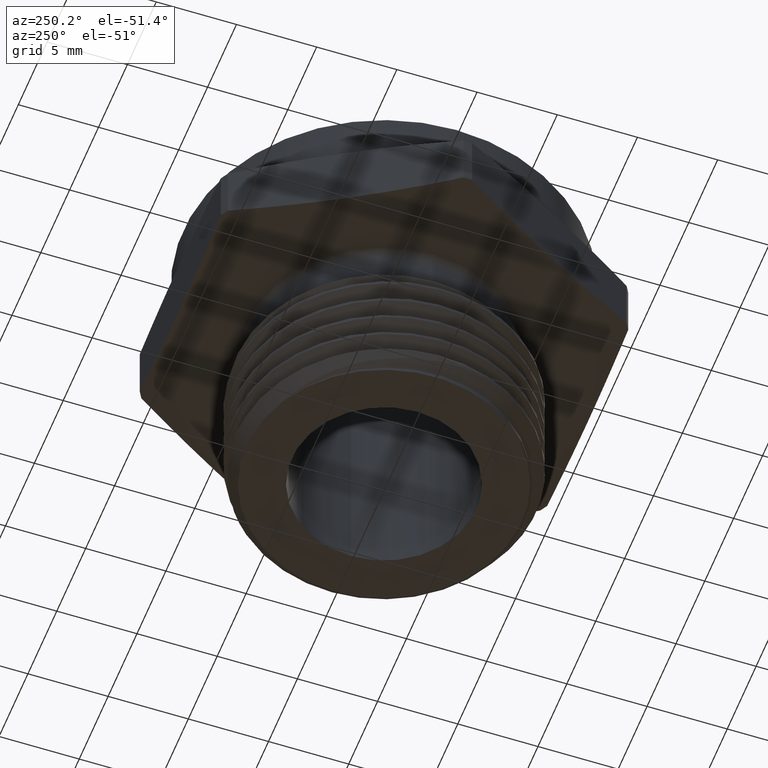
[diagram: clean part render]
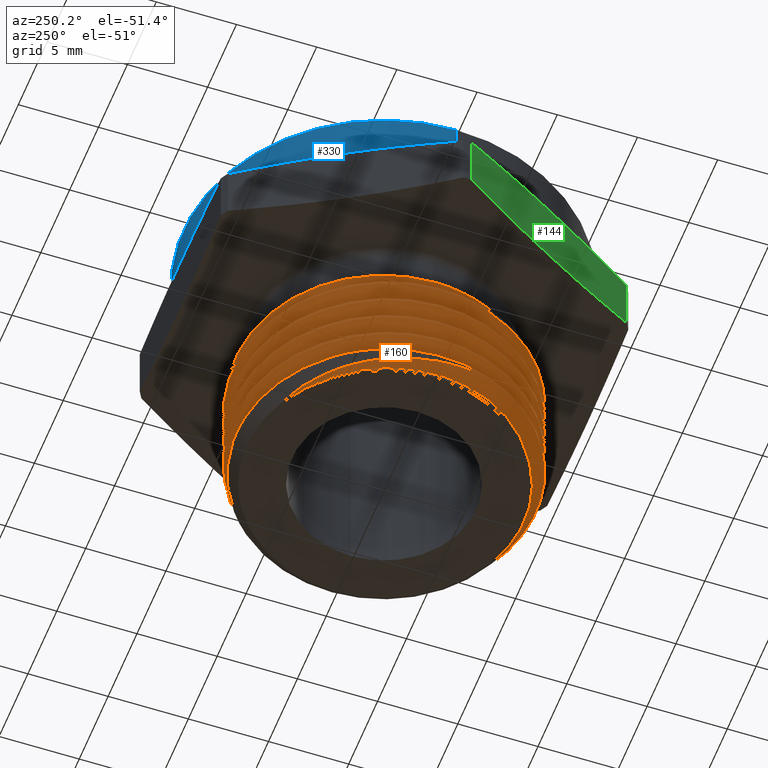
[diagram: same view with three faces highlighted in distinct colors, each labeled with its STEP entity id]
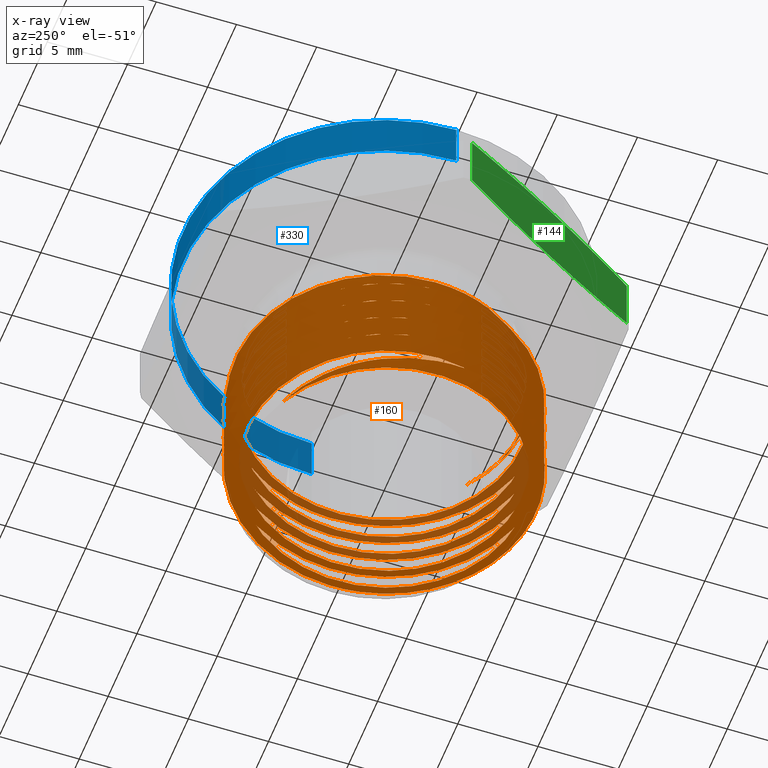
[diagram: x-ray of the same camera — body ghosted, the three highlighted faces saturated]
A machine part, auxiliary view with three faces highlighted in distinct colors.
The next image is the same camera in x-ray (body ghosted, the three faces saturated) — at least one of them is partly hidden behind the body in this view.
Their STEP definitions:

[orange] entity #160 — the highlighted face is a freeform B-spline surface patch.
#39 = VERTEX_POINT ( 'NONE', #2897 ) ;
#160 = ADVANCED_FACE ( 'NONE', ( #2200 ), #306, .F. ) ;
#306 =( BOUNDED_SURFACE ( )  B_SPLINE_SURFACE ( 1, 2, ( 
 ( #956, #958, #959, #960, #961, #962, #963, #964, #965, #966, #967, #968, #969, #970, #971, #972, #973, #974, #975, #976, #977, #978, #979, #980, #981, #982, #983, #984, #985, #986, #987, #988, #989, #990, #991, #992, #993, #994, #995, #996, #997, #998, #999, #1000, #1001, #1002, #1003, #1004, #1005, #1006, #1007, #1008, #1009, #1010, #1011, #1012, #1013, #1014, #1015, #1016, #1017, #1018, #1019, #1020, #1021, #1022, #1023, #1024, #1025, #1026, #1027, #1028, #1029, #1030, #1031, #1032, #1033, #1034, #1035, #1036, #1037, #1038, #1039, #1040, #1041, #1042, #1043, #1044, #1045, #1046, #1047, #1048, #1049, #1050, #1051, #1052, #1053, #1054, #1055, #1056, #1057, #1058, #1059, #1060, #1061, #1062, #1063, #1064, #1065, #1066, #1067, #1068, #1069 ),
 ( #1070, #1071, #1072, #1073, #1074, #1075, #1076, #1077, #1078, #1079, #1080, #1081, #1082, #1083, #1084, #1085, #1086, #1087, #1088, #1089, #1090, #1091, #1092, #1093, #1094, #1095, #1096, #1097, #1098, #1099, #1100, #1101, #1102, #1103, #1104, #1105, #1106, #1107, #1108, #1109, #1110, #1111, #1112, #1113, #1114, #1115, #1116, #1117, #1118, #1119, #1120, #1121, #1122, #1123, #1124, #1125, #1126, #1127, #1128, #1129, #1130, #1131, #1132, #1133, #1134, #1135, #1136, #1137, #1138, #1139, #1140, #1141, #1142, #1143, #1144, #1145, #1146, #1147, #1148, #1149, #1150, #1151, #1152, #1153, #1154, #1155, #1156, #1157, #1158, #1159, #1160, #1161, #1162, #1163, #1164, #1165, #1166, #1167, #1168, #1169, #1170, #1171, #1172, #1173, #1174, #1175, #1176, #1177, #1178, #1179, #1180, #1181, #1182 ) ),
 .UNSPECIFIED., .F., .F., .F. ) 
 B_SPLINE_SURFACE_WITH_KNOTS ( ( 2, 2 ),
 ( 3, 2, 2, 2, 2, 2, 2, 2, 2, 2, 2, 2, 2, 2, 2, 2, 2, 2, 2, 2, 2, 2, 2, 2, 2, 2, 2, 2, 2, 2, 2, 2, 2, 2, 2, 2, 2, 2, 2, 2, 2, 2, 2, 2, 2, 2, 2, 2, 2, 2, 2, 2, 2, 2, 2, 2, 3 ),
 ( 0.0000000000000000000, 1.000000000000000000 ),
 ( 0.0000000000000000000, 0.01785714285714285600, 0.03571428571428571200, 0.05357142857142856800, 0.07142857142857142500, 0.08928571428571428800, 0.1071428571428571400, 0.1250000000000000000, 0.1428571428571428500, 0.1607142857142857300, 0.1785714285714285800, 0.1964285714285714200, 0.2142857142857142700, 0.2321428571428571500, 0.2500000000000000000, 0.2678571428571428500, 0.2857142857142857000, 0.3035714285714285500, 0.3214285714285714500, 0.3392857142857143000, 0.3571428571428571500, 0.3750000000000000000, 0.3928571428571428500, 0.4107142857142857000, 0.4285714285714285500, 0.4464285714285714500, 0.4642857142857143000, 0.4821428571428571500, 0.5000000000000000000, 0.5178571428571429000, 0.5357142857142857000, 0.5535714285714286000, 0.5714285714285714000, 0.5892857142857143000, 0.6071428571428571000, 0.6250000000000000000, 0.6428571428571429000, 0.6607142857142857000, 0.6785714285714286000, 0.6964285714285714000, 0.7142857142857143000, 0.7321428571428571000, 0.7500000000000000000, 0.7678571428571429000, 0.7857142857142857000, 0.8035714285714286000, 0.8214285714285714000, 0.8392857142857143000, 0.8571428571428571000, 0.8750000000000000000, 0.8928571428571429000, 0.9107142857142857000, 0.9285714285714286000, 0.9464285714285714000, 0.9642857142857143000, 0.9821428571428571000, 1.000000000000000000 ),
 .UNSPECIFIED. ) 
 GEOMETRIC_REPRESENTATION_ITEM ( )  RATIONAL_B_SPLINE_SURFACE ( (
 ( 1.000000000000000000, 0.9238795325112867400, 1.000000000000000000, 0.9238795325112867400, 1.000000000000000000, 0.9238795325112867400, 1.000000000000000000, 0.9238795325112867400, 1.000000000000000000, 0.9238795325112867400, 1.000000000000000000, 0.9238795325112867400, 1.000000000000000000, 0.9238795325112867400, 1.000000000000000000, 0.9238795325112867400, 1.000000000000000000, 0.9238795325112867400, 1.000000000000000000, 0.9238795325112867400, 1.000000000000000000, 0.9238795325112867400, 1.000000000000000000, 0.9238795325112867400, 1.000000000000000000, 0.9238795325112867400, 1.000000000000000000, 0.9238795325112867400, 1.000000000000000000, 0.9238795325112867400, 1.000000000000000000, 0.9238795325112867400, 1.000000000000000000, 0.9238795325112867400, 1.000000000000000000, 0.9238795325112867400, 1.000000000000000000, 0.9238795325112867400, 1.000000000000000000, 0.9238795325112867400, 1.000000000000000000, 0.9238795325112867400, 1.000000000000000000, 0.9238795325112867400, 1.000000000000000000, 0.9238795325112867400, 1.000000000000000000, 0.9238795325112867400, 1.000000000000000000, 0.9238795325112867400, 1.000000000000000000, 0.9238795325112867400, 1.000000000000000000, 0.9238795325112867400, 1.000000000000000000, 0.9238795325112867400, 1.000000000000000000, 0.9238795325112867400, 1.000000000000000000, 0.9238795325112867400, 1.000000000000000000, 0.9238795325112867400, 1.000000000000000000, 0.9238795325112867400, 1.000000000000000000, 0.9238795325112867400, 1.000000000000000000, 0.9238795325112867400, 1.000000000000000000, 0.9238795325112867400, 1.000000000000000000, 0.9238795325112867400, 1.000000000000000000, 0.9238795325112867400, 1.000000000000000000, 0.9238795325112867400, 1.000000000000000000, 0.9238795325112867400, 1.000000000000000000, 0.9238795325112867400, 1.000000000000000000, 0.9238795325112867400, 1.000000000000000000, 0.9238795325112867400, 1.000000000000000000, 0.9238795325112867400, 1.000000000000000000, 0.9238795325112867400, 1.000000000000000000, 0.9238795325112867400, 1.000000000000000000, 0.9238795325112867400, 1.000000000000000000, 0.9238795325112867400, 1.000000000000000000, 0.9238795325112867400, 1.000000000000000000, 0.9238795325112867400, 1.000000000000000000, 0.9238795325112867400, 1.000000000000000000, 0.9238795325112867400, 1.000000000000000000, 0.9238795325112867400, 1.000000000000000000, 0.9238795325112867400, 1.000000000000000000, 0.9238795325112867400, 1.000000000000000000, 0.9238795325112867400, 1.000000000000000000, 0.9238795325112867400, 1.000000000000000000),
 ( 1.000000000000000000, 0.9238795325112867400, 1.000000000000000000, 0.9238795325112867400, 1.000000000000000000, 0.9238795325112867400, 1.000000000000000000, 0.9238795325112867400, 1.000000000000000000, 0.9238795325112867400, 1.000000000000000000, 0.9238795325112867400, 1.000000000000000000, 0.9238795325112867400, 1.000000000000000000, 0.9238795325112867400, 1.000000000000000000, 0.9238795325112867400, 1.000000000000000000, 0.9238795325112867400, 1.000000000000000000, 0.9238795325112867400, 1.000000000000000000, 0.9238795325112867400, 1.000000000000000000, 0.9238795325112867400, 1.000000000000000000, 0.9238795325112867400, 1.000000000000000000, 0.9238795325112867400, 1.000000000000000000, 0.9238795325112867400, 1.000000000000000000, 0.9238795325112867400, 1.000000000000000000, 0.9238795325112867400, 1.000000000000000000, 0.9238795325112867400, 1.000000000000000000, 0.9238795325112867400, 1.000000000000000000, 0.9238795325112867400, 1.000000000000000000, 0.9238795325112867400, 1.000000000000000000, 0.9238795325112867400, 1.000000000000000000, 0.9238795325112867400, 1.000000000000000000, 0.9238795325112867400, 1.000000000000000000, 0.9238795325112867400, 1.000000000000000000, 0.9238795325112867400, 1.000000000000000000, 0.9238795325112867400, 1.000000000000000000, 0.9238795325112867400, 1.000000000000000000, 0.9238795325112867400, 1.000000000000000000, 0.9238795325112867400, 1.000000000000000000, 0.9238795325112867400, 1.000000000000000000, 0.9238795325112867400, 1.000000000000000000, 0.9238795325112867400, 1.000000000000000000, 0.9238795325112867400, 1.000000000000000000, 0.9238795325112867400, 1.000000000000000000, 0.9238795325112867400, 1.000000000000000000, 0.9238795325112867400, 1.000000000000000000, 0.9238795325112867400, 1.000000000000000000, 0.9238795325112867400, 1.000000000000000000, 0.9238795325112867400, 1.000000000000000000, 0.9238795325112867400, 1.000000000000000000, 0.9238795325112867400, 1.000000000000000000, 0.9238795325112867400, 1.000000000000000000, 0.9238795325112867400, 1.000000000000000000, 0.9238795325112867400, 1.000000000000000000, 0.9238795325112867400, 1.000000000000000000, 0.9238795325112867400, 1.000000000000000000, 0.9238795325112867400, 1.000000000000000000, 0.9238795325112867400, 1.000000000000000000, 0.9238795325112867400, 1.000000000000000000, 0.9238795325112867400, 1.000000000000000000, 0.9238795325112867400, 1.000000000000000000, 0.9238795325112867400, 1.000000000000000000, 0.9238795325112867400, 1.000000000000000000, 0.9238795325112867400, 1.000000000000000000) ) ) 
 REPRESENTATION_ITEM ( '' )  SURFACE ( )  );
#310 =( BOUNDED_CURVE ( )  B_SPLINE_CURVE ( 2, ( #1325, #1323, #1322, #1326, #1327, #1328, #1329, #1330, #1331 ),
 .UNSPECIFIED., .F., .T. ) 
 B_SPLINE_CURVE_WITH_KNOTS ( ( 3, 2, 2, 2, 3 ),
 ( 0.6428571428571429000, 0.6607142857142857000, 0.6785714285714286000, 0.6964285714285714000, 0.7142857142857143000 ),
 .UNSPECIFIED. ) 
 CURVE ( )  GEOMETRIC_REPRESENTATION_ITEM ( )  RATIONAL_B_SPLINE_CURVE ( ( 1.000000000000000000, 0.9238795325112867400, 1.000000000000000000, 0.9238795325112867400, 1.000000000000000000, 0.9238795325112867400, 1.000000000000000000, 0.9238795325112867400, 1.000000000000000000 ) ) 
 REPRESENTATION_ITEM ( '' )  );
#312 = B_SPLINE_CURVE_WITH_KNOTS ( 'NONE', 3,
 ( #1347, #1346, #1324, #1348, #1349, #1350, #1351, #1352, #1353, #1354, #1355, #1356, #1357, #1358, #1359, #1360 ),
 .UNSPECIFIED., .F., .F.,
 ( 4, 2, 2, 2, 2, 2, 2, 4 ),
 ( 0.003034115471411768600, 0.004281607550701082600, 0.005529099629990395800, 0.008024083788569023900, 0.009271575867858337900, 0.01051906794714765500, 0.01176656002643696900, 0.01301405210572628400 ),
 .UNSPECIFIED. ) ;
#313 =( BOUNDED_CURVE ( )  B_SPLINE_CURVE ( 2, ( #1368, #1365, #1363, #1370, #1371, #1372, #1373, #1374, #1375 ),
 .UNSPECIFIED., .F., .T. ) 
 B_SPLINE_CURVE_WITH_KNOTS ( ( 3, 2, 2, 2, 3 ),
 ( 0.5000000000000000000, 0.5178571428571429000, 0.5357142857142857000, 0.5535714285714286000, 0.5714285714285714000 ),
 .UNSPECIFIED. ) 
 CURVE ( )  GEOMETRIC_REPRESENTATION_ITEM ( )  RATIONAL_B_SPLINE_CURVE ( ( 1.000000000000000000, 0.9238795325112867400, 1.000000000000000000, 0.9238795325112867400, 1.000000000000000000, 0.9238795325112867400, 1.000000000000000000, 0.9238795325112867400, 1.000000000000000000 ) ) 
 REPRESENTATION_ITEM ( '' )  );
#315 =( BOUNDED_CURVE ( )  B_SPLINE_CURVE ( 2, ( #1390, #1388, #1369, #1392, #1393, #1394, #1395, #1396, #1397 ),
 .UNSPECIFIED., .F., .F. ) 
 B_SPLINE_CURVE_WITH_KNOTS ( ( 3, 2, 2, 2, 3 ),
 ( 0.3571428571428571500, 0.3750000000000000000, 0.3928571428571428500, 0.4107142857142857000, 0.4285714285714285500 ),
 .UNSPECIFIED. ) 
 CURVE ( )  GEOMETRIC_REPRESENTATION_ITEM ( )  RATIONAL_B_SPLINE_CURVE ( ( 1.000000000000000000, 0.9238795325112867400, 1.000000000000000000, 0.9238795325112867400, 1.000000000000000000, 0.9238795325112867400, 1.000000000000000000, 0.9238795325112867400, 1.000000000000000000 ) ) 
 REPRESENTATION_ITEM ( '' )  );
#317 =( BOUNDED_CURVE ( )  B_SPLINE_CURVE ( 2, ( #1412, #1410, #1391, #1414, #1415, #1416, #1417, #1418, #1419 ),
 .UNSPECIFIED., .F., .T. ) 
 B_SPLINE_CURVE_WITH_KNOTS ( ( 3, 2, 2, 2, 3 ),
 ( 0.2142857142857142700, 0.2321428571428571500, 0.2500000000000000000, 0.2678571428571428500, 0.2857142857142857000 ),
 .UNSPECIFIED. ) 
 CURVE ( )  GEOMETRIC_REPRESENTATION_ITEM ( )  RATIONAL_B_SPLINE_CURVE ( ( 1.000000000000000000, 0.9238795325112867400, 1.000000000000000000, 0.9238795325112867400, 1.000000000000000000, 0.9238795325112867400, 1.000000000000000000, 0.9238795325112867400, 1.000000000000000000 ) ) 
 REPRESENTATION_ITEM ( '' )  );
#340 = CARTESIAN_POINT ( 'NONE',  ( -0.3714999999999997200, -0.1538803384216057300, -0.3430510040797572500 ) ) ;
#341 = CARTESIAN_POINT ( 'NONE',  ( -0.3715000000000000000, -8.703913358848155600E-016, -0.3469572540797571400 ) ) ;
#351 = CARTESIAN_POINT ( 'NONE',  ( -0.2626901692108017900, -0.2626901692108029600, -0.3391447540797571900 ) ) ;
#352 = CARTESIAN_POINT ( 'NONE',  ( -0.1538803384216039500, -0.3715000000000003900, -0.3352385040797571400 ) ) ;
#353 = CARTESIAN_POINT ( 'NONE',  ( 8.476435215906532700E-016, -0.3715000000000000000, -0.3313322540797571400 ) ) ;
#354 = CARTESIAN_POINT ( 'NONE',  ( 0.1538803384216057300, -0.3714999999999997200, -0.3274260040797571900 ) ) ;
#355 = CARTESIAN_POINT ( 'NONE',  ( 0.2626901692108029600, -0.2626901692108017900, -0.3235197540797571900 ) ) ;
#356 = CARTESIAN_POINT ( 'NONE',  ( 0.3715000000000003900, -0.1538803384216039500, -0.3196135040797572500 ) ) ;
#357 = CARTESIAN_POINT ( 'NONE',  ( 0.3715000000000000000, 8.248957072964913800E-016, -0.3157072540797572500 ) ) ;
#358 = CARTESIAN_POINT ( 'NONE',  ( -0.3714999999999997200, -0.1538803384216057300, -0.2805510040797572500 ) ) ;
#359 = CARTESIAN_POINT ( 'NONE',  ( -0.3715000000000000000, -8.703913358848155600E-016, -0.2844572540797572500 ) ) ;
#369 = CARTESIAN_POINT ( 'NONE',  ( -0.2626901692108017900, -0.2626901692108029600, -0.2766447540797571900 ) ) ;
#370 = CARTESIAN_POINT ( 'NONE',  ( -0.1538803384216039500, -0.3715000000000003900, -0.2727385040797572500 ) ) ;
#371 = CARTESIAN_POINT ( 'NONE',  ( 8.476435215906532700E-016, -0.3715000000000000000, -0.2688322540797571900 ) ) ;
#372 = CARTESIAN_POINT ( 'NONE',  ( 0.1538803384216057300, -0.3714999999999997200, -0.2649260040797572500 ) ) ;
#373 = CARTESIAN_POINT ( 'NONE',  ( 0.2626901692108029600, -0.2626901692108017900, -0.2610197540797572500 ) ) ;
#374 = CARTESIAN_POINT ( 'NONE',  ( 0.3715000000000003900, -0.1538803384216039500, -0.2571135040797571900 ) ) ;
#375 = CARTESIAN_POINT ( 'NONE',  ( 0.3715000000000000000, 8.248957072964913800E-016, -0.2532072540797572500 ) ) ;
#376 = CARTESIAN_POINT ( 'NONE',  ( -0.3714999999999997200, -0.1538803384216057300, -0.2180510040797572200 ) ) ;
#377 = CARTESIAN_POINT ( 'NONE',  ( -0.3715000000000000000, -8.703913358848155600E-016, -0.2219572540797572200 ) ) ;
#387 = CARTESIAN_POINT ( 'NONE',  ( -0.2626901692108017900, -0.2626901692108029600, -0.2141447540797572200 ) ) ;
#388 = CARTESIAN_POINT ( 'NONE',  ( -0.1538803384216039500, -0.3715000000000003900, -0.2102385040797572200 ) ) ;
#389 = CARTESIAN_POINT ( 'NONE',  ( 8.476435215906532700E-016, -0.3715000000000000000, -0.2063322540797572200 ) ) ;
#390 = CARTESIAN_POINT ( 'NONE',  ( 0.1538803384216057300, -0.3714999999999997200, -0.2024260040797572200 ) ) ;
#391 = CARTESIAN_POINT ( 'NONE',  ( 0.2626901692108029600, -0.2626901692108017900, -0.1985197540797571900 ) ) ;
#392 = CARTESIAN_POINT ( 'NONE',  ( 0.3715000000000003900, -0.1538803384216039500, -0.1946135040797572500 ) ) ;
#393 = CARTESIAN_POINT ( 'NONE',  ( 0.3715000000000000000, 8.248957072964913800E-016, -0.1907072540797572200 ) ) ;
#394 = CARTESIAN_POINT ( 'NONE',  ( -0.3714999999999997200, -0.1538803384216057300, -0.1555510040797572200 ) ) ;
#395 = CARTESIAN_POINT ( 'NONE',  ( -0.3715000000000000000, -8.703913358848155600E-016, -0.1594572540797571900 ) ) ;
#405 = CARTESIAN_POINT ( 'NONE',  ( -0.2626901692108017900, -0.2626901692108029600, -0.1516447540797572500 ) ) ;
#406 = CARTESIAN_POINT ( 'NONE',  ( -0.1538803384216039500, -0.3715000000000003900, -0.1477385040797572200 ) ) ;
#407 = CARTESIAN_POINT ( 'NONE',  ( 8.476435215906532700E-016, -0.3715000000000000000, -0.1438322540797572200 ) ) ;
#408 = CARTESIAN_POINT ( 'NONE',  ( 0.1538803384216057300, -0.3714999999999997200, -0.1399260040797572500 ) ) ;
#409 = CARTESIAN_POINT ( 'NONE',  ( 0.2626901692108029600, -0.2626901692108017900, -0.1360197540797571900 ) ) ;
#410 = CARTESIAN_POINT ( 'NONE',  ( 0.3715000000000003900, -0.1538803384216039500, -0.1321135040797572200 ) ) ;
#411 = CARTESIAN_POINT ( 'NONE',  ( 0.3715000000000000000, 8.248957072964913800E-016, -0.1282072540797572200 ) ) ;
#464 = CARTESIAN_POINT ( 'NONE',  ( 0.1886156966428817200, -0.2809925321117517900, -0.09472529733621362600 ) ) ;
#487 = CARTESIAN_POINT ( 'NONE',  ( -0.3519082519256946900, 0.01183603476161618900, -0.1085859214553583500 ) ) ;
#488 = CARTESIAN_POINT ( 'NONE',  ( -0.3515098675022750900, 0.02381028192026712200, -0.1087933880194262400 ) ) ;
#492 = CARTESIAN_POINT ( 'NONE',  ( -0.3517070497214636600, -8.240182203154024200E-016, -0.1083847192511271100 ) ) ;
#493 = CARTESIAN_POINT ( 'NONE',  ( -0.3495264536513390000, 0.04744900577402102300, -0.1092106646974874000 ) ) ;
#494 = CARTESIAN_POINT ( 'NONE',  ( -0.3479487005653413800, 0.05914458108696164800, -0.1094209597753718200 ) ) ;
#495 = CARTESIAN_POINT ( 'NONE',  ( -0.3414962069545154900, 0.09386816606591989700, -0.1100566281988594300 ) ) ;
#496 = CARTESIAN_POINT ( 'NONE',  ( -0.3348935837433171800, 0.1166011567035791000, -0.1104879951279064700 ) ) ;
#497 = CARTESIAN_POINT ( 'NONE',  ( -0.3170355268770990700, 0.1607942599105926800, -0.1113585453114216000 ) ) ;
#498 = CARTESIAN_POINT ( 'NONE',  ( -0.3060419365695854500, 0.1816435738851338300, -0.1117856018041921800 ) ) ;
#499 = CARTESIAN_POINT ( 'NONE',  ( -0.2865637214992583500, 0.2111125415179691500, -0.1124144666683585000 ) ) ;
#500 = CARTESIAN_POINT ( 'NONE',  ( -0.2795692199703757000, 0.2206324062314073700, -0.1126221225435539400 ) ) ;
#501 = CARTESIAN_POINT ( 'NONE',  ( -0.2645489112800337700, 0.2390491033774649100, -0.1130334559034414400 ) ) ;
#502 = CARTESIAN_POINT ( 'NONE',  ( -0.2565308685353012700, 0.2479203811534688700, -0.1132346658780351700 ) ) ;
#503 = CARTESIAN_POINT ( 'NONE',  ( -0.2314734490829907500, 0.2730177079416297700, -0.1138327975188030700 ) ) ;
#504 = CARTESIAN_POINT ( 'NONE',  ( -0.2132872805568917200, 0.2879599560164105600, -0.1142426922072609000 ) ) ;
#505 = CARTESIAN_POINT ( 'NONE',  ( -0.1837811204045418600, 0.3076832533546144900, -0.1148739437893972100 ) ) ;
#506 = CARTESIAN_POINT ( 'NONE',  ( -0.1735117836270108600, 0.3138354639127050000, -0.1150883234985959100 ) ) ;
#507 = CARTESIAN_POINT ( 'NONE',  ( -0.1525652665285280900, 0.3250063217407651000, -0.1155152778347169500 ) ) ;
#508 = CARTESIAN_POINT ( 'NONE',  ( -0.1418850780408814300, 0.3300367912618278300, -0.1157279902400905500 ) ) ;
#509 = CARTESIAN_POINT ( 'NONE',  ( -0.1092389611229816100, 0.3435041891653886100, -0.1163638855321124900 ) ) ;
#510 = CARTESIAN_POINT ( 'NONE',  ( -0.08667345729337477800, 0.3503331344680694600, -0.1167848375049430600 ) ) ;
#511 = CARTESIAN_POINT ( 'NONE',  ( -0.03987716154429592200, 0.3595249265878292000, -0.1176207952054146900 ) ) ;
#512 = CARTESIAN_POINT ( 'NONE',  ( -0.01634590242151131100, 0.3617365908566221900, -0.1180178225126729800 ) ) ;
#513 = CARTESIAN_POINT ( 'NONE',  ( 0.01895963426818457100, 0.3616228466586700600, -0.1186059636348814500 ) ) ;
#514 = CARTESIAN_POINT ( 'NONE',  ( 0.03073972951220540000, 0.3610156190597567600, -0.1188058058575540100 ) ) ;
#515 = CARTESIAN_POINT ( 'NONE',  ( 0.05432358207258632800, 0.3586382101502417200, -0.1192131799196036200 ) ) ;
#516 = CARTESIAN_POINT ( 'NONE',  ( 0.06616896738653636800, 0.3568542606902498900, -0.1194214906107667800 ) ) ;
#517 = CARTESIAN_POINT ( 'NONE',  ( 0.1010011459300628200, 0.3498506134873815000, -0.1200450039113041000 ) ) ;
#518 = CARTESIAN_POINT ( 'NONE',  ( 0.1235105344395232800, 0.3429888898002196300, -0.1204624878994570400 ) ) ;
#519 = CARTESIAN_POINT ( 'NONE',  ( 0.1671204639273498300, 0.3249272368924708300, -0.1213009301292696800 ) ) ;
#520 = CARTESIAN_POINT ( 'NONE',  ( 0.1883350355969762300, 0.3135992653489339500, -0.1217245840237236300 ) ) ;
#521 = CARTESIAN_POINT ( 'NONE',  ( 0.2275567065423432500, 0.2874522511246042600, -0.1225403709491016700 ) ) ;
#522 = CARTESIAN_POINT ( 'NONE',  ( 0.2457904660996158300, 0.2725673273626828000, -0.1229329470521261100 ) ) ;
#523 = CARTESIAN_POINT ( 'NONE',  ( 0.2710433791053454800, 0.2474810814245707900, -0.1235164022248458800 ) ) ;
#524 = CARTESIAN_POINT ( 'NONE',  ( 0.2791166356544675400, 0.2386440801055786700, -0.1237160247837797300 ) ) ;
#525 = CARTESIAN_POINT ( 'NONE',  ( 0.2942168627934009200, 0.2204259678281585100, -0.1241164135457394500 ) ) ;
#526 = CARTESIAN_POINT ( 'NONE',  ( 0.3083656792252784700, 0.2015765363902397000, -0.1245200253996144600 ) ) ;
#527 = CARTESIAN_POINT ( 'NONE',  ( 0.3206432780525765300, 0.1814854359380684800, -0.1249298920264719200 ) ) ;
#528 = CARTESIAN_POINT ( 'NONE',  ( 0.3319751101965334700, 0.1607667600925222500, -0.1253428958482754900 ) ) ;
#529 = CARTESIAN_POINT ( 'NONE',  ( 0.3371863213526900000, 0.1500502487380505600, -0.1255517908102055900 ) ) ;
#530 = CARTESIAN_POINT ( 'NONE',  ( 0.3512197467998076600, 0.1172229644239763300, -0.1261776472259997200 ) ) ;
#531 = CARTESIAN_POINT ( 'NONE',  ( 0.3583389578985997100, 0.09476575104296335000, -0.1265877374551328000 ) ) ;
#532 = CARTESIAN_POINT ( 'NONE',  ( 0.3657729054213315100, 0.06024948305368182200, -0.1271926409641613000 ) ) ;
#533 = CARTESIAN_POINT ( 'NONE',  ( 0.3677062906308011200, 0.04860468355971994000, -0.1273925602464275900 ) ) ;
#534 = CARTESIAN_POINT ( 'NONE',  ( 0.3704563467740448800, 0.02502928878883415100, -0.1277889317249584200 ) ) ;
#535 = CARTESIAN_POINT ( 'NONE',  ( 0.3712685583177962600, 0.01309258846451477300, -0.1279854494970612300 ) ) ;
#536 = CARTESIAN_POINT ( 'NONE',  ( 0.3714981743202459600, 0.001164678807291214900, -0.1281776695296633900 ) ) ;
#538 = CARTESIAN_POINT ( 'NONE',  ( 0.2012982638886934600, -0.2712085386845293800, -0.09442766952966351300 ) ) ;
#541 = CARTESIAN_POINT ( 'NONE',  ( 0.1753586174124737200, -0.2897942424465030400, -0.09502511583608781700 ) ) ;
#542 = CARTESIAN_POINT ( 'NONE',  ( 0.1477230368081937100, -0.3054802936770612000, -0.09562892294965059900 ) ) ;
#543 = CARTESIAN_POINT ( 'NONE',  ( 0.1332597230462519400, -0.3123964063665297700, -0.09593463450748669600 ) ) ;
#544 = CARTESIAN_POINT ( 'NONE',  ( 0.08873348956582778600, -0.3299368411246497200, -0.09684590799021373900 ) ) ;
#545 = CARTESIAN_POINT ( 'NONE',  ( 0.05802094956558430400, -0.3372928061862621200, -0.09743665068252123400 ) ) ;
#546 = CARTESIAN_POINT ( 'NONE',  ( 0.01041278923926791000, -0.3418338128586492800, -0.09829841784412550500 ) ) ;
#547 = CARTESIAN_POINT ( 'NONE',  ( -0.005617895656675909300, -0.3422170519133009300, -0.09857502419148779500 ) ) ;
#548 = CARTESIAN_POINT ( 'NONE',  ( -0.03723112395280962100, -0.3408009911645907300, -0.09914110104092720100 ) ) ;
#549 = CARTESIAN_POINT ( 'NONE',  ( -0.05292601042773488500, -0.3390111457907387100, -0.09942934644554345100 ) ) ;
#550 = CARTESIAN_POINT ( 'NONE',  ( -0.08409132717208682400, -0.3332581072357935200, -0.1000161465788404100 ) ) ;
#551 = CARTESIAN_POINT ( 'NONE',  ( -0.09967765779582116200, -0.3292491506645550100, -0.1003170431283225600 ) ) ;
#552 = CARTESIAN_POINT ( 'NONE',  ( -0.1298432422113194600, -0.3192056145937362500, -0.1009143211901155800 ) ) ;
#553 = CARTESIAN_POINT ( 'NONE',  ( -0.1444586525690786700, -0.3131843592151732900, -0.1012112527959373000 ) ) ;
#554 = CARTESIAN_POINT ( 'NONE',  ( -0.1727727793650465400, -0.2991815166364706900, -0.1018017892686753100 ) ) ;
#555 = CARTESIAN_POINT ( 'NONE',  ( -0.1864715771083903200, -0.2912001032957403600, -0.1020953942042078000 ) ) ;
#556 = CARTESIAN_POINT ( 'NONE',  ( -0.2129172294071614300, -0.2732015697544100700, -0.1026792585221053400 ) ) ;
#557 = CARTESIAN_POINT ( 'NONE',  ( -0.2254192921140121800, -0.2633441046239036200, -0.1029641604537003500 ) ) ;
#558 = CARTESIAN_POINT ( 'NONE',  ( -0.2488417138162766800, -0.2421248083264649400, -0.1035162205030008100 ) ) ;
#559 = CARTESIAN_POINT ( 'NONE',  ( -0.2597979783513114600, -0.2307424250662081200, -0.1037876547450365900 ) ) ;
#560 = CARTESIAN_POINT ( 'NONE',  ( -0.2802045408261217300, -0.2064370508671052900, -0.1043544249011418700 ) ) ;
#561 = CARTESIAN_POINT ( 'NONE',  ( -0.2896914241941755400, -0.1934246284949951200, -0.1046468371009068200 ) ) ;
#562 = CARTESIAN_POINT ( 'NONE',  ( -0.3150373076467926100, -0.1531338118330410100, -0.1055211920672714700 ) ) ;
#563 = CARTESIAN_POINT ( 'NONE',  ( -0.3281341664977585100, -0.1243090396843513400, -0.1061078637670690700 ) ) ;
#564 = CARTESIAN_POINT ( 'NONE',  ( -0.3463821246124229000, -0.06297697444713509800, -0.1072819587731034800 ) ) ;
#565 = CARTESIAN_POINT ( 'NONE',  ( -0.3511671804056881200, -0.03175865797626962300, -0.1078448499353517500 ) ) ;
#566 = CARTESIAN_POINT ( 'NONE',  ( -0.3517070497214636600, -8.240182203154024200E-016, -0.1083847192511271100 ) ) ;
#906 =( BOUNDED_CURVE ( )  B_SPLINE_CURVE ( 2, ( #1503, #1504, #1509, #1510, #1511, #1512, #1513, #1514, #1515 ),
 .UNSPECIFIED., .F., .F. ) 
 B_SPLINE_CURVE_WITH_KNOTS ( ( 3, 2, 2, 2, 3 ),
 ( 0.1502470123688571800, 0.1607142857142857300, 0.1785714285714285800, 0.1964285714285714200, 0.2142857142857142700 ),
 .UNSPECIFIED. ) 
 CURVE ( )  GEOMETRIC_REPRESENTATION_ITEM ( )  RATIONAL_B_SPLINE_CURVE ( ( 0.9630701254887805700, 0.9553806705383746100, 1.000000000000000000, 0.9238795325112867400, 1.000000000000000000, 0.9238795325112867400, 1.000000000000000000, 0.9238795325112867400, 1.000000000000000000 ) ) 
 REPRESENTATION_ITEM ( '' )  );
#908 =( BOUNDED_CURVE ( )  B_SPLINE_CURVE ( 2, ( #341, #340, #351, #352, #353, #354, #355, #356, #357 ),
 .UNSPECIFIED., .F., .F. ) 
 B_SPLINE_CURVE_WITH_KNOTS ( ( 3, 2, 2, 2, 3 ),
 ( 0.2857142857142857000, 0.3035714285714285500, 0.3214285714285714500, 0.3392857142857143000, 0.3571428571428571500 ),
 .UNSPECIFIED. ) 
 CURVE ( )  GEOMETRIC_REPRESENTATION_ITEM ( )  RATIONAL_B_SPLINE_CURVE ( ( 1.000000000000000000, 0.9238795325112867400, 1.000000000000000000, 0.9238795325112867400, 1.000000000000000000, 0.9238795325112867400, 1.000000000000000000, 0.9238795325112867400, 1.000000000000000000 ) ) 
 REPRESENTATION_ITEM ( '' )  );
#910 =( BOUNDED_CURVE ( )  B_SPLINE_CURVE ( 2, ( #359, #358, #369, #370, #371, #372, #373, #374, #375 ),
 .UNSPECIFIED., .F., .F. ) 
 B_SPLINE_CURVE_WITH_KNOTS ( ( 3, 2, 2, 2, 3 ),
 ( 0.4285714285714285500, 0.4464285714285714500, 0.4642857142857143000, 0.4821428571428571500, 0.5000000000000000000 ),
 .UNSPECIFIED. ) 
 CURVE ( )  GEOMETRIC_REPRESENTATION_ITEM ( )  RATIONAL_B_SPLINE_CURVE ( ( 1.000000000000000000, 0.9238795325112867400, 1.000000000000000000, 0.9238795325112867400, 1.000000000000000000, 0.9238795325112867400, 1.000000000000000000, 0.9238795325112867400, 1.000000000000000000 ) ) 
 REPRESENTATION_ITEM ( '' )  );
#912 =( BOUNDED_CURVE ( )  B_SPLINE_CURVE ( 2, ( #377, #376, #387, #388, #389, #390, #391, #392, #393 ),
 .UNSPECIFIED., .F., .F. ) 
 B_SPLINE_CURVE_WITH_KNOTS ( ( 3, 2, 2, 2, 3 ),
 ( 0.5714285714285714000, 0.5892857142857143000, 0.6071428571428571000, 0.6250000000000000000, 0.6428571428571429000 ),
 .UNSPECIFIED. ) 
 CURVE ( )  GEOMETRIC_REPRESENTATION_ITEM ( )  RATIONAL_B_SPLINE_CURVE ( ( 1.000000000000000000, 0.9238795325112867400, 1.000000000000000000, 0.9238795325112867400, 1.000000000000000000, 0.9238795325112867400, 1.000000000000000000, 0.9238795325112867400, 1.000000000000000000 ) ) 
 REPRESENTATION_ITEM ( '' )  );
#914 =( BOUNDED_CURVE ( )  B_SPLINE_CURVE ( 2, ( #395, #394, #405, #406, #407, #408, #409, #410, #411 ),
 .UNSPECIFIED., .F., .T. ) 
 B_SPLINE_CURVE_WITH_KNOTS ( ( 3, 2, 2, 2, 3 ),
 ( 0.7142857142857143000, 0.7321428571428571000, 0.7500000000000000000, 0.7678571428571429000, 0.7857142857142857000 ),
 .UNSPECIFIED. ) 
 CURVE ( )  GEOMETRIC_REPRESENTATION_ITEM ( )  RATIONAL_B_SPLINE_CURVE ( ( 1.000000000000000000, 0.9238795325112867400, 1.000000000000000000, 0.9238795325112867400, 1.000000000000000000, 0.9238795325112867400, 1.000000000000000000, 0.9238795325112867400, 1.000000000000000000 ) ) 
 REPRESENTATION_ITEM ( '' )  );
#918 = B_SPLINE_CURVE_WITH_KNOTS ( 'NONE', 3,
 ( #492, #487, #488, #493, #494, #495, #496, #497, #498, #499, #500, #501, #502, #503, #504, #505, #506, #507, #508, #509, #510, #511, #512, #513, #514, #515, #516, #517, #518, #519, #520, #521, #522, #523, #524, #525, #526, #527, #528, #529, #530, #531, #532, #533, #534, #535, #536 ),
 .UNSPECIFIED., .F., .F.,
 ( 4, 2, 2, 2, 2, 2, 2, 2, 2, 2, 2, 2, 2, 2, 2, 2, 2, 2, 1, 2, 2, 2, 2, 4 ),
 ( 0.01937311682326229100, 0.02027563010142229000, 0.02117814337958229300, 0.02298316993590229400, 0.02478819649222229600, 0.02569070977038229900, 0.02659322304854229800, 0.02839824960486230300, 0.02930076288302230200, 0.03020327616118230500, 0.03200830271750230300, 0.03381332927382230800, 0.03471584255198231100, 0.03561835583014230600, 0.03742338238646231200, 0.03922840894278231700, 0.04103343549910231500, 0.04193594877726231100, 0.04283846205542230600, 0.04374097533358230200, 0.04464348861174230500, 0.04644851516806229600, 0.04735102844622229900, 0.04825354172438228700 ),
 .UNSPECIFIED. ) ;
#919 = B_SPLINE_CURVE_WITH_KNOTS ( 'NONE', 3,
 ( #538, #464, #541, #542, #543, #544, #545, #546, #547, #548, #549, #550, #551, #552, #553, #554, #555, #556, #557, #558, #559, #560, #561, #562, #563, #564, #565, #566 ),
 .UNSPECIFIED., .F., .F.,
 ( 4, 2, 2, 2, 2, 2, 2, 2, 2, 2, 2, 2, 2, 4 ),
 ( 2.492201365644436600E-016, 0.001210819801454124800, 0.002421639602908001900, 0.004843279205815755700, 0.006054099007269632200, 0.007264918808723508700, 0.008475738610177386100, 0.009686558411631261700, 0.01089737821308513900, 0.01210819801453901600, 0.01331901781599289400, 0.01452983761744677300, 0.01695147722035453300, 0.01937311682326229100 ),
 .UNSPECIFIED. ) ;
#935 =( BOUNDED_CURVE ( )  B_SPLINE_CURVE ( 2, ( #1581, #1580, #1586 ),
 .UNSPECIFIED., .F., .T. ) 
 B_SPLINE_CURVE_WITH_KNOTS ( ( 3, 3 ),
 ( 0.7857142857142857000, 0.7857874089407209700 ),
 .UNSPECIFIED. ) 
 CURVE ( )  GEOMETRIC_REPRESENTATION_ITEM ( )  RATIONAL_B_SPLINE_CURVE ( ( 1.000000000000000000, 0.9996882942458900100, 0.9993791412999891700 ) ) 
 REPRESENTATION_ITEM ( '' )  );
#936 =( BOUNDED_CURVE ( )  B_SPLINE_CURVE ( 2, ( #1582, #1589, #1590, #1591, #1592, #1593, #1594, #1595, #1596, #1597, #1598, #1599, #1600, #1601, #1602, #1603, #1604, #1605, #1606, #1607, #1608, #1609, #1610, #1611, #1612, #1613, #1614, #1615, #1616, #1617, #1618, #1619, #1620, #1621, #1622, #1623, #1624, #1625, #1626, #1627, #1628, #1629, #1630, #1631, #1632, #1633, #1634, #1635, #1636, #1637, #1638, #1639, #1640, #1641, #1642, #1643, #1644, #1645, #1646, #1647, #1648, #1649, #1650, #1651, #1652, #1653, #1654, #1655, #1656, #1657, #1658, #1659, #1660, #1661, #1662, #1663, #1664, #1665, #1666, #1667, #1668, #1669, #1670, #1671, #1672, #1673, #1674, #1675, #1676, #1677, #1678 ),
 .UNSPECIFIED., .F., .F. ) 
 B_SPLINE_CURVE_WITH_KNOTS ( ( 3, 2, 2, 2, 2, 2, 2, 2, 2, 2, 2, 2, 2, 2, 2, 2, 2, 2, 2, 2, 2, 2, 2, 2, 2, 2, 2, 2, 2, 2, 2, 2, 2, 2, 2, 2, 2, 2, 2, 2, 2, 2, 2, 2, 2, 3 ),
 ( 0.1175275786737727000, 0.1250000000000000000, 0.1428571428571428500, 0.1607142857142857300, 0.1785714285714285800, 0.1964285714285714200, 0.2142857142857142700, 0.2321428571428571500, 0.2500000000000000000, 0.2678571428571428500, 0.2857142857142857000, 0.3035714285714285500, 0.3214285714285714500, 0.3392857142857143000, 0.3571428571428571500, 0.3750000000000000000, 0.3928571428571429000, 0.4107142857142857000, 0.4285714285714286000, 0.4464285714285715100, 0.4642857142857143000, 0.4821428571428572100, 0.5000000000000000000, 0.5178571428571429000, 0.5357142857142857000, 0.5535714285714286000, 0.5714285714285714000, 0.5892857142857143000, 0.6071428571428571000, 0.6250000000000000000, 0.6428571428571429000, 0.6607142857142857000, 0.6785714285714286000, 0.6964285714285714000, 0.7142857142857143000, 0.7321428571428571000, 0.7500000000000000000, 0.7678571428571430200, 0.7857142857142855900, 0.8035714285714286000, 0.8214285714285714000, 0.8392857142857143000, 0.8571428571428571000, 0.8749999999999998900, 0.8928571428571429000, 0.9073304622085163200 ),
 .UNSPECIFIED. ) 
 CURVE ( )  GEOMETRIC_REPRESENTATION_ITEM ( )  RATIONAL_B_SPLINE_CURVE ( ( 0.9629520908465141200, 0.9681469645409970200, 1.000000000000000000, 0.9238795325112867400, 1.000000000000000000, 0.9238795325112867400, 1.000000000000000000, 0.9238795325112867400, 1.000000000000000000, 0.9238795325112867400, 1.000000000000000000, 0.9238795325112867400, 1.000000000000000000, 0.9238795325112867400, 1.000000000000000000, 0.9238795325112867400, 1.000000000000000000, 0.9238795325112867400, 1.000000000000000000, 0.9238795325112867400, 1.000000000000000000, 0.9238795325112867400, 1.000000000000000000, 0.9238795325112867400, 1.000000000000000000, 0.9238795325112867400, 1.000000000000000000, 0.9238795325112867400, 1.000000000000000000, 0.9238795325112867400, 1.000000000000000000, 0.9238795325112867400, 1.000000000000000000, 0.9238795325112867400, 1.000000000000000000, 0.9238795325112867400, 1.000000000000000000, 0.9238795325112867400, 1.000000000000000000, 0.9238795325112867400, 1.000000000000000000, 0.9238795325112867400, 1.000000000000000000, 0.9238795325112867400, 1.000000000000000000, 0.9238795325112867400, 1.000000000000000000, 0.9238795325112867400, 1.000000000000000000, 0.9238795325112867400, 1.000000000000000000, 0.9238795325112867400, 1.000000000000000000, 0.9238795325112867400, 1.000000000000000000, 0.9238795325112867400, 1.000000000000000000, 0.9238795325112867400, 1.000000000000000000, 0.9238795325112867400, 1.000000000000000000, 0.9238795325112867400, 1.000000000000000000, 0.9238795325112867400, 1.000000000000000000, 0.9238795325112867400, 1.000000000000000000, 0.9238795325112867400, 1.000000000000000000, 0.9238795325112867400, 1.000000000000000000, 0.9238795325112867400, 1.000000000000000000, 0.9238795325112867400, 1.000000000000000000, 0.9238795325112867400, 1.000000000000000000, 0.9238795325112867400, 1.000000000000000000, 0.9238795325112867400, 1.000000000000000000, 0.9238795325112867400, 1.000000000000000000, 0.9238795325112867400, 1.000000000000000000, 0.9238795325112867400, 1.000000000000000000, 0.9238795325112867400, 1.000000000000000000, 0.9383039132321606700, 0.9766179091146716100 ) ) 
 REPRESENTATION_ITEM ( '' )  );
#938 = B_SPLINE_CURVE_WITH_KNOTS ( 'NONE', 3,
 ( #1680, #1679, #1770, #1771, #1772, #1773 ),
 .UNSPECIFIED., .F., .F.,
 ( 4, 2, 4 ),
 ( 0.0000000000000000000, 0.001517057735705884300, 0.003034115471411768600 ),
 .UNSPECIFIED. ) ;
#956 = CARTESIAN_POINT ( 'NONE',  ( -0.3377499999999999900, -7.913180987754949500E-016, -0.4914428256649072100 ) ) ;
#958 = CARTESIAN_POINT ( 'NONE',  ( -0.3377499999999996600, -0.1399006306915136200, -0.4875365756649072700 ) ) ;
#959 = CARTESIAN_POINT ( 'NONE',  ( -0.2388253153457558500, -0.2388253153457569300, -0.4836303256649071600 ) ) ;
#960 = CARTESIAN_POINT ( 'NONE',  ( -0.1399006306915121000, -0.3377500000000003300, -0.4797240756649072700 ) ) ;
#961 = CARTESIAN_POINT ( 'NONE',  ( 7.706368759548940400E-016, -0.3377499999999999900, -0.4758178256649072100 ) ) ;
#962 = CARTESIAN_POINT ( 'NONE',  ( 0.1399006306915136200, -0.3377499999999996600, -0.4719115756649073200 ) ) ;
#963 = CARTESIAN_POINT ( 'NONE',  ( 0.2388253153457569300, -0.2388253153457558500, -0.4680053256649072100 ) ) ;
#964 = CARTESIAN_POINT ( 'NONE',  ( 0.3377500000000003300, -0.1399006306915121000, -0.4640990756649072100 ) ) ;
#965 = CARTESIAN_POINT ( 'NONE',  ( 0.3377499999999999900, 7.499556531342931300E-016, -0.4601928256649072100 ) ) ;
#966 = CARTESIAN_POINT ( 'NONE',  ( 0.3377499999999997200, 0.1399006306915135900, -0.4562865756649071600 ) ) ;
#967 = CARTESIAN_POINT ( 'NONE',  ( 0.2388253153457559100, 0.2388253153457569300, -0.4523803256649072100 ) ) ;
#968 = CARTESIAN_POINT ( 'NONE',  ( 0.1399006306915122300, 0.3377500000000002700, -0.4484740756649071600 ) ) ;
#969 = CARTESIAN_POINT ( 'NONE',  ( -7.292744303136922200E-016, 0.3377499999999999900, -0.4445678256649071600 ) ) ;
#970 = CARTESIAN_POINT ( 'NONE',  ( -0.1399006306915137300, 0.3377499999999996100, -0.4406615756649072100 ) ) ;
#971 = CARTESIAN_POINT ( 'NONE',  ( -0.2388253153457568800, 0.2388253153457559100, -0.4367553256649072100 ) ) ;
#972 = CARTESIAN_POINT ( 'NONE',  ( -0.3377500000000002700, 0.1399006306915122900, -0.4328490756649071600 ) ) ;
#973 = CARTESIAN_POINT ( 'NONE',  ( -0.3377499999999999900, -7.913180987754949500E-016, -0.4289428256649072100 ) ) ;
#974 = CARTESIAN_POINT ( 'NONE',  ( -0.3377499999999996600, -0.1399006306915136200, -0.4250365756649072100 ) ) ;
#975 = CARTESIAN_POINT ( 'NONE',  ( -0.2388253153457558500, -0.2388253153457569300, -0.4211303256649072100 ) ) ;
#976 = CARTESIAN_POINT ( 'NONE',  ( -0.1399006306915121000, -0.3377500000000003300, -0.4172240756649072100 ) ) ;
#977 = CARTESIAN_POINT ( 'NONE',  ( 7.706368759548940400E-016, -0.3377499999999999900, -0.4133178256649072100 ) ) ;
#978 = CARTESIAN_POINT ( 'NONE',  ( 0.1399006306915136200, -0.3377499999999996600, -0.4094115756649072700 ) ) ;
#979 = CARTESIAN_POINT ( 'NONE',  ( 0.2388253153457569300, -0.2388253153457558500, -0.4055053256649072700 ) ) ;
#980 = CARTESIAN_POINT ( 'NONE',  ( 0.3377500000000003300, -0.1399006306915121000, -0.4015990756649072100 ) ) ;
#981 = CARTESIAN_POINT ( 'NONE',  ( 0.3377499999999999900, 7.499556531342931300E-016, -0.3976928256649072100 ) ) ;
#982 = CARTESIAN_POINT ( 'NONE',  ( 0.3377499999999997200, 0.1399006306915135900, -0.3937865756649072700 ) ) ;
#983 = CARTESIAN_POINT ( 'NONE',  ( 0.2388253153457559100, 0.2388253153457569300, -0.3898803256649072100 ) ) ;
#984 = CARTESIAN_POINT ( 'NONE',  ( 0.1399006306915122300, 0.3377500000000002700, -0.3859740756649072100 ) ) ;
#985 = CARTESIAN_POINT ( 'NONE',  ( -7.292744303136922200E-016, 0.3377499999999999900, -0.3820678256649072100 ) ) ;
#986 = CARTESIAN_POINT ( 'NONE',  ( -0.1399006306915137300, 0.3377499999999996100, -0.3781615756649071600 ) ) ;
#987 = CARTESIAN_POINT ( 'NONE',  ( -0.2388253153457568800, 0.2388253153457559100, -0.3742553256649072100 ) ) ;
#988 = CARTESIAN_POINT ( 'NONE',  ( -0.3377500000000002700, 0.1399006306915122900, -0.3703490756649071600 ) ) ;
#989 = CARTESIAN_POINT ( 'NONE',  ( -0.3377499999999999900, -7.913180987754949500E-016, -0.3664428256649071600 ) ) ;
#990 = CARTESIAN_POINT ( 'NONE',  ( -0.3377499999999996600, -0.1399006306915136200, -0.3625365756649071600 ) ) ;
#991 = CARTESIAN_POINT ( 'NONE',  ( -0.2388253153457558500, -0.2388253153457569300, -0.3586303256649072100 ) ) ;
#992 = CARTESIAN_POINT ( 'NONE',  ( -0.1399006306915121000, -0.3377500000000003300, -0.3547240756649071000 ) ) ;
#993 = CARTESIAN_POINT ( 'NONE',  ( 7.706368759548940400E-016, -0.3377499999999999900, -0.3508178256649072100 ) ) ;
#994 = CARTESIAN_POINT ( 'NONE',  ( 0.1399006306915136200, -0.3377499999999996600, -0.3469115756649072100 ) ) ;
#995 = CARTESIAN_POINT ( 'NONE',  ( 0.2388253153457569300, -0.2388253153457558500, -0.3430053256649072100 ) ) ;
#996 = CARTESIAN_POINT ( 'NONE',  ( 0.3377500000000003300, -0.1399006306915121000, -0.3390990756649072700 ) ) ;
#997 = CARTESIAN_POINT ( 'NONE',  ( 0.3377499999999999900, 7.499556531342931300E-016, -0.3351928256649072100 ) ) ;
#998 = CARTESIAN_POINT ( 'NONE',  ( 0.3377499999999997200, 0.1399006306915135900, -0.3312865756649072700 ) ) ;
#999 = CARTESIAN_POINT ( 'NONE',  ( 0.2388253153457559100, 0.2388253153457569300, -0.3273803256649072700 ) ) ;
#1000 = CARTESIAN_POINT ( 'NONE',  ( 0.1399006306915122300, 0.3377500000000002700, -0.3234740756649071600 ) ) ;
#1001 = CARTESIAN_POINT ( 'NONE',  ( -7.292744303136922200E-016, 0.3377499999999999900, -0.3195678256649072100 ) ) ;
#1002 = CARTESIAN_POINT ( 'NONE',  ( -0.1399006306915137300, 0.3377499999999996100, -0.3156615756649072100 ) ) ;
#1003 = CARTESIAN_POINT ( 'NONE',  ( -0.2388253153457568800, 0.2388253153457559100, -0.3117553256649072100 ) ) ;
#1004 = CARTESIAN_POINT ( 'NONE',  ( -0.3377500000000002700, 0.1399006306915122900, -0.3078490756649072100 ) ) ;
#1005 = CARTESIAN_POINT ( 'NONE',  ( -0.3377499999999999900, -7.913180987754949500E-016, -0.3039428256649072100 ) ) ;
#1006 = CARTESIAN_POINT ( 'NONE',  ( -0.3377499999999996600, -0.1399006306915136200, -0.3000365756649072700 ) ) ;
#1007 = CARTESIAN_POINT ( 'NONE',  ( -0.2388253153457558500, -0.2388253153457569300, -0.2961303256649072100 ) ) ;
#1008 = CARTESIAN_POINT ( 'NONE',  ( -0.1399006306915121000, -0.3377500000000003300, -0.2922240756649072700 ) ) ;
#1009 = CARTESIAN_POINT ( 'NONE',  ( 7.706368759548940400E-016, -0.3377499999999999900, -0.2883178256649072100 ) ) ;
#1010 = CARTESIAN_POINT ( 'NONE',  ( 0.1399006306915136200, -0.3377499999999996600, -0.2844115756649072100 ) ) ;
#1011 = CARTESIAN_POINT ( 'NONE',  ( 0.2388253153457569300, -0.2388253153457558500, -0.2805053256649072100 ) ) ;
#1012 = CARTESIAN_POINT ( 'NONE',  ( 0.3377500000000003300, -0.1399006306915121000, -0.2765990756649072100 ) ) ;
#1013 = CARTESIAN_POINT ( 'NONE',  ( 0.3377499999999999900, 7.499556531342931300E-016, -0.2726928256649072100 ) ) ;
#1014 = CARTESIAN_POINT ( 'NONE',  ( 0.3377499999999997200, 0.1399006306915135900, -0.2687865756649072100 ) ) ;
#1015 = CARTESIAN_POINT ( 'NONE',  ( 0.2388253153457559100, 0.2388253153457569300, -0.2648803256649072100 ) ) ;
#1016 = CARTESIAN_POINT ( 'NONE',  ( 0.1399006306915122300, 0.3377500000000002700, -0.2609740756649072100 ) ) ;
#1017 = CARTESIAN_POINT ( 'NONE',  ( -7.292744303136922200E-016, 0.3377499999999999900, -0.2570678256649072100 ) ) ;
#1018 = CARTESIAN_POINT ( 'NONE',  ( -0.1399006306915137300, 0.3377499999999996100, -0.2531615756649072700 ) ) ;
#1019 = CARTESIAN_POINT ( 'NONE',  ( -0.2388253153457568800, 0.2388253153457559100, -0.2492553256649072100 ) ) ;
#1020 = CARTESIAN_POINT ( 'NONE',  ( -0.3377500000000002700, 0.1399006306915122900, -0.2453490756649072100 ) ) ;
#1021 = CARTESIAN_POINT ( 'NONE',  ( -0.3377499999999999900, -7.913180987754949500E-016, -0.2414428256649072100 ) ) ;
#1022 = CARTESIAN_POINT ( 'NONE',  ( -0.3377499999999996600, -0.1399006306915136200, -0.2375365756649071800 ) ) ;
#1023 = CARTESIAN_POINT ( 'NONE',  ( -0.2388253153457558500, -0.2388253153457569300, -0.2336303256649072100 ) ) ;
#1024 = CARTESIAN_POINT ( 'NONE',  ( -0.1399006306915121000, -0.3377500000000003300, -0.2297240756649072100 ) ) ;
#1025 = CARTESIAN_POINT ( 'NONE',  ( 7.706368759548940400E-016, -0.3377499999999999900, -0.2258178256649072100 ) ) ;
#1026 = CARTESIAN_POINT ( 'NONE',  ( 0.1399006306915136200, -0.3377499999999996600, -0.2219115756649072100 ) ) ;
#1027 = CARTESIAN_POINT ( 'NONE',  ( 0.2388253153457569300, -0.2388253153457558500, -0.2180053256649071800 ) ) ;
#1028 = CARTESIAN_POINT ( 'NONE',  ( 0.3377500000000003300, -0.1399006306915121000, -0.2140990756649072700 ) ) ;
#1029 = CARTESIAN_POINT ( 'NONE',  ( 0.3377499999999999900, 7.499556531342931300E-016, -0.2101928256649072100 ) ) ;
#1030 = CARTESIAN_POINT ( 'NONE',  ( 0.3377499999999997200, 0.1399006306915135900, -0.2062865756649072100 ) ) ;
#1031 = CARTESIAN_POINT ( 'NONE',  ( 0.2388253153457559100, 0.2388253153457569300, -0.2023803256649072100 ) ) ;
#1032 = CARTESIAN_POINT ( 'NONE',  ( 0.1399006306915122300, 0.3377500000000002700, -0.1984740756649071800 ) ) ;
#1033 = CARTESIAN_POINT ( 'NONE',  ( -7.292744303136922200E-016, 0.3377499999999999900, -0.1945678256649072100 ) ) ;
#1034 = CARTESIAN_POINT ( 'NONE',  ( -0.1399006306915137300, 0.3377499999999996100, -0.1906615756649072100 ) ) ;
#1035 = CARTESIAN_POINT ( 'NONE',  ( -0.2388253153457568800, 0.2388253153457559100, -0.1867553256649072100 ) ) ;
#1036 = CARTESIAN_POINT ( 'NONE',  ( -0.3377500000000002700, 0.1399006306915122900, -0.1828490756649072400 ) ) ;
#1037 = CARTESIAN_POINT ( 'NONE',  ( -0.3377499999999999900, -7.913180987754949500E-016, -0.1789428256649071800 ) ) ;
#1038 = CARTESIAN_POINT ( 'NONE',  ( -0.3377499999999996600, -0.1399006306915136200, -0.1750365756649072700 ) ) ;
#1039 = CARTESIAN_POINT ( 'NONE',  ( -0.2388253153457558500, -0.2388253153457569300, -0.1711303256649072400 ) ) ;
#1040 = CARTESIAN_POINT ( 'NONE',  ( -0.1399006306915121000, -0.3377500000000003300, -0.1672240756649071800 ) ) ;
#1041 = CARTESIAN_POINT ( 'NONE',  ( 7.706368759548940400E-016, -0.3377499999999999900, -0.1633178256649072100 ) ) ;
#1042 = CARTESIAN_POINT ( 'NONE',  ( 0.1399006306915136200, -0.3377499999999996600, -0.1594115756649072100 ) ) ;
#1043 = CARTESIAN_POINT ( 'NONE',  ( 0.2388253153457569300, -0.2388253153457558500, -0.1555053256649071800 ) ) ;
#1044 = CARTESIAN_POINT ( 'NONE',  ( 0.3377500000000003300, -0.1399006306915121000, -0.1515990756649072100 ) ) ;
#1045 = CARTESIAN_POINT ( 'NONE',  ( 0.3377499999999999900, 7.499556531342931300E-016, -0.1476928256649072100 ) ) ;
#1046 = CARTESIAN_POINT ( 'NONE',  ( 0.3377499999999997200, 0.1399006306915135900, -0.1437865756649072100 ) ) ;
#1047 = CARTESIAN_POINT ( 'NONE',  ( 0.2388253153457559100, 0.2388253153457569300, -0.1398803256649071800 ) ) ;
#1048 = CARTESIAN_POINT ( 'NONE',  ( 0.1399006306915122300, 0.3377500000000002700, -0.1359740756649072400 ) ) ;
#1049 = CARTESIAN_POINT ( 'NONE',  ( -7.292744303136922200E-016, 0.3377499999999999900, -0.1320678256649072400 ) ) ;
#1050 = CARTESIAN_POINT ( 'NONE',  ( -0.1399006306915137300, 0.3377499999999996100, -0.1281615756649071800 ) ) ;
#1051 = CARTESIAN_POINT ( 'NONE',  ( -0.2388253153457568800, 0.2388253153457559100, -0.1242553256649072100 ) ) ;
#1052 = CARTESIAN_POINT ( 'NONE',  ( -0.3377500000000002700, 0.1399006306915122900, -0.1203490756649072300 ) ) ;
#1053 = CARTESIAN_POINT ( 'NONE',  ( -0.3377499999999999900, -7.913180987754949500E-016, -0.1164428256649072500 ) ) ;
#1054 = CARTESIAN_POINT ( 'NONE',  ( -0.3377499999999996600, -0.1399006306915136200, -0.1125365756649072000 ) ) ;
#1055 = CARTESIAN_POINT ( 'NONE',  ( -0.2388253153457558500, -0.2388253153457569300, -0.1086303256649072300 ) ) ;
#1056 = CARTESIAN_POINT ( 'NONE',  ( -0.1399006306915121000, -0.3377500000000003300, -0.1047240756649072400 ) ) ;
#1057 = CARTESIAN_POINT ( 'NONE',  ( 7.706368759548940400E-016, -0.3377499999999999900, -0.1008178256649072000 ) ) ;
#1058 = CARTESIAN_POINT ( 'NONE',  ( 0.1399006306915136200, -0.3377499999999996600, -0.09691157566490721200 ) ) ;
#1059 = CARTESIAN_POINT ( 'NONE',  ( 0.2388253153457569300, -0.2388253153457558500, -0.09300532566490724000 ) ) ;
#1060 = CARTESIAN_POINT ( 'NONE',  ( 0.3377500000000003300, -0.1399006306915121000, -0.08909907566490718500 ) ) ;
#1061 = CARTESIAN_POINT ( 'NONE',  ( 0.3377499999999999900, 7.499556531342931300E-016, -0.08519282566490721200 ) ) ;
#1062 = CARTESIAN_POINT ( 'NONE',  ( 0.3377499999999997200, 0.1399006306915135900, -0.08128657566490724000 ) ) ;
#1063 = CARTESIAN_POINT ( 'NONE',  ( 0.2388253153457559100, 0.2388253153457569300, -0.07738032566490724000 ) ) ;
#1064 = CARTESIAN_POINT ( 'NONE',  ( 0.1399006306915122300, 0.3377500000000002700, -0.07347407566490719900 ) ) ;
#1065 = CARTESIAN_POINT ( 'NONE',  ( -7.292744303136922200E-016, 0.3377499999999999900, -0.06956782566490721200 ) ) ;
#1066 = CARTESIAN_POINT ( 'NONE',  ( -0.1399006306915137300, 0.3377499999999996100, -0.06566157566490724000 ) ) ;
#1067 = CARTESIAN_POINT ( 'NONE',  ( -0.2388253153457568800, 0.2388253153457559100, -0.06175532566490719200 ) ) ;
#1068 = CARTESIAN_POINT ( 'NONE',  ( -0.3377500000000002700, 0.1399006306915122900, -0.05784907566490720500 ) ) ;
#1069 = CARTESIAN_POINT ( 'NONE',  ( -0.3377499999999999900, -7.913180987754949500E-016, -0.05394282566490723300 ) ) ;
#1070 = CARTESIAN_POINT ( 'NONE',  ( -0.3727249999999999700, -8.732614015280426600E-016, -0.4712499999999999500 ) ) ;
#1071 = CARTESIAN_POINT ( 'NONE',  ( -0.3727249999999996400, -0.1543877500355127200, -0.4673437499999999500 ) ) ;
#1072 = CARTESIAN_POINT ( 'NONE',  ( -0.2635563750177553100, -0.2635563750177564700, -0.4634374999999998900 ) ) ;
#1073 = CARTESIAN_POINT ( 'NONE',  ( -0.1543877500355110000, -0.3727250000000003100, -0.4595312499999999500 ) ) ;
#1074 = CARTESIAN_POINT ( 'NONE',  ( 8.504385776174327200E-016, -0.3727249999999999700, -0.4556249999999999500 ) ) ;
#1075 = CARTESIAN_POINT ( 'NONE',  ( 0.1543877500355127200, -0.3727249999999996400, -0.4517187500000001100 ) ) ;
#1076 = CARTESIAN_POINT ( 'NONE',  ( 0.2635563750177564700, -0.2635563750177553100, -0.4478124999999998900 ) ) ;
#1077 = CARTESIAN_POINT ( 'NONE',  ( 0.3727250000000003100, -0.1543877500355110000, -0.4439062500000000000 ) ) ;
#1078 = CARTESIAN_POINT ( 'NONE',  ( 0.3727249999999999700, 8.276157537068229800E-016, -0.4399999999999999500 ) ) ;
#1079 = CARTESIAN_POINT ( 'NONE',  ( 0.3727249999999996400, 0.1543877500355126700, -0.4360937499999998400 ) ) ;
#1080 = CARTESIAN_POINT ( 'NONE',  ( 0.2635563750177553600, 0.2635563750177564700, -0.4321874999999999500 ) ) ;
#1081 = CARTESIAN_POINT ( 'NONE',  ( 0.1543877500355111700, 0.3727250000000002500, -0.4282812499999999500 ) ) ;
#1082 = CARTESIAN_POINT ( 'NONE',  ( -8.047929297962130400E-016, 0.3727249999999999700, -0.4243749999999998900 ) ) ;
#1083 = CARTESIAN_POINT ( 'NONE',  ( -0.1543877500355128300, 0.3727249999999996400, -0.4204687499999998900 ) ) ;
#1084 = CARTESIAN_POINT ( 'NONE',  ( -0.2635563750177564700, 0.2635563750177553600, -0.4165624999999999500 ) ) ;
#1085 = CARTESIAN_POINT ( 'NONE',  ( -0.3727250000000002500, 0.1543877500355112500, -0.4126562499999998900 ) ) ;
#1086 = CARTESIAN_POINT ( 'NONE',  ( -0.3727249999999999700, -8.732614015280426600E-016, -0.4087499999999998900 ) ) ;
#1087 = CARTESIAN_POINT ( 'NONE',  ( -0.3727249999999996400, -0.1543877500355127200, -0.4048437499999999500 ) ) ;
#1088 = CARTESIAN_POINT ( 'NONE',  ( -0.2635563750177553100, -0.2635563750177564700, -0.4009374999999999500 ) ) ;
#1089 = CARTESIAN_POINT ( 'NONE',  ( -0.1543877500355110000, -0.3727250000000003100, -0.3970312499999998900 ) ) ;
#1090 = CARTESIAN_POINT ( 'NONE',  ( 8.504385776174327200E-016, -0.3727249999999999700, -0.3931249999999999500 ) ) ;
#1091 = CARTESIAN_POINT ( 'NONE',  ( 0.1543877500355127200, -0.3727249999999996400, -0.3892187499999999500 ) ) ;
#1092 = CARTESIAN_POINT ( 'NONE',  ( 0.2635563750177564700, -0.2635563750177553100, -0.3853124999999999500 ) ) ;
#1093 = CARTESIAN_POINT ( 'NONE',  ( 0.3727250000000003100, -0.1543877500355110000, -0.3814062499999999500 ) ) ;
#1094 = CARTESIAN_POINT ( 'NONE',  ( 0.3727249999999999700, 8.276157537068229800E-016, -0.3774999999999999500 ) ) ;
#1095 = CARTESIAN_POINT ( 'NONE',  ( 0.3727249999999996400, 0.1543877500355126700, -0.3735937500000001100 ) ) ;
#1096 = CARTESIAN_POINT ( 'NONE',  ( 0.2635563750177553600, 0.2635563750177564700, -0.3696874999999998900 ) ) ;
#1097 = CARTESIAN_POINT ( 'NONE',  ( 0.1543877500355111700, 0.3727250000000002500, -0.3657812499999999500 ) ) ;
#1098 = CARTESIAN_POINT ( 'NONE',  ( -8.047929297962130400E-016, 0.3727249999999999700, -0.3618749999999999500 ) ) ;
#1099 = CARTESIAN_POINT ( 'NONE',  ( -0.1543877500355128300, 0.3727249999999996400, -0.3579687499999998400 ) ) ;
#1100 = CARTESIAN_POINT ( 'NONE',  ( -0.2635563750177564700, 0.2635563750177553600, -0.3540624999999999500 ) ) ;
#1101 = CARTESIAN_POINT ( 'NONE',  ( -0.3727250000000002500, 0.1543877500355112500, -0.3501562499999999500 ) ) ;
#1102 = CARTESIAN_POINT ( 'NONE',  ( -0.3727249999999999700, -8.732614015280426600E-016, -0.3462499999999998900 ) ) ;
#1103 = CARTESIAN_POINT ( 'NONE',  ( -0.3727249999999996400, -0.1543877500355127200, -0.3423437499999998900 ) ) ;
#1104 = CARTESIAN_POINT ( 'NONE',  ( -0.2635563750177553100, -0.2635563750177564700, -0.3384374999999999500 ) ) ;
#1105 = CARTESIAN_POINT ( 'NONE',  ( -0.1543877500355110000, -0.3727250000000003100, -0.3345312499999998900 ) ) ;
#1106 = CARTESIAN_POINT ( 'NONE',  ( 8.504385776174327200E-016, -0.3727249999999999700, -0.3306249999999998900 ) ) ;
#1107 = CARTESIAN_POINT ( 'NONE',  ( 0.1543877500355127200, -0.3727249999999996400, -0.3267187499999999500 ) ) ;
#1108 = CARTESIAN_POINT ( 'NONE',  ( 0.2635563750177564700, -0.2635563750177553100, -0.3228124999999999500 ) ) ;
#1109 = CARTESIAN_POINT ( 'NONE',  ( 0.3727250000000003100, -0.1543877500355110000, -0.3189062499999999500 ) ) ;
#1110 = CARTESIAN_POINT ( 'NONE',  ( 0.3727249999999999700, 8.276157537068229800E-016, -0.3149999999999998900 ) ) ;
#1111 = CARTESIAN_POINT ( 'NONE',  ( 0.3727249999999996400, 0.1543877500355126700, -0.3110937499999999500 ) ) ;
#1112 = CARTESIAN_POINT ( 'NONE',  ( 0.2635563750177553600, 0.2635563750177564700, -0.3071874999999999500 ) ) ;
#1113 = CARTESIAN_POINT ( 'NONE',  ( 0.1543877500355111700, 0.3727250000000002500, -0.3032812499999998900 ) ) ;
#1114 = CARTESIAN_POINT ( 'NONE',  ( -8.047929297962130400E-016, 0.3727249999999999700, -0.2993749999999999500 ) ) ;
#1115 = CARTESIAN_POINT ( 'NONE',  ( -0.1543877500355128300, 0.3727249999999996400, -0.2954687499999998900 ) ) ;
#1116 = CARTESIAN_POINT ( 'NONE',  ( -0.2635563750177564700, 0.2635563750177553600, -0.2915624999999999500 ) ) ;
#1117 = CARTESIAN_POINT ( 'NONE',  ( -0.3727250000000002500, 0.1543877500355112500, -0.2876562499999998900 ) ) ;
#1118 = CARTESIAN_POINT ( 'NONE',  ( -0.3727249999999999700, -8.732614015280426600E-016, -0.2837499999999999500 ) ) ;
#1119 = CARTESIAN_POINT ( 'NONE',  ( -0.3727249999999996400, -0.1543877500355127200, -0.2798437499999998900 ) ) ;
#1120 = CARTESIAN_POINT ( 'NONE',  ( -0.2635563750177553100, -0.2635563750177564700, -0.2759374999999998900 ) ) ;
#1121 = CARTESIAN_POINT ( 'NONE',  ( -0.1543877500355110000, -0.3727250000000003100, -0.2720312500000000000 ) ) ;
#1122 = CARTESIAN_POINT ( 'NONE',  ( 8.504385776174327200E-016, -0.3727249999999999700, -0.2681249999999999500 ) ) ;
#1123 = CARTESIAN_POINT ( 'NONE',  ( 0.1543877500355127200, -0.3727249999999996400, -0.2642187499999999500 ) ) ;
#1124 = CARTESIAN_POINT ( 'NONE',  ( 0.2635563750177564700, -0.2635563750177553100, -0.2603124999999999500 ) ) ;
#1125 = CARTESIAN_POINT ( 'NONE',  ( 0.3727250000000003100, -0.1543877500355110000, -0.2564062499999998900 ) ) ;
#1126 = CARTESIAN_POINT ( 'NONE',  ( 0.3727249999999999700, 8.276157537068229800E-016, -0.2524999999999999500 ) ) ;
#1127 = CARTESIAN_POINT ( 'NONE',  ( 0.3727249999999996400, 0.1543877500355126700, -0.2485937499999999200 ) ) ;
#1128 = CARTESIAN_POINT ( 'NONE',  ( 0.2635563750177553600, 0.2635563750177564700, -0.2446874999999999500 ) ) ;
#1129 = CARTESIAN_POINT ( 'NONE',  ( 0.1543877500355111700, 0.3727250000000002500, -0.2407812499999999500 ) ) ;
#1130 = CARTESIAN_POINT ( 'NONE',  ( -8.047929297962130400E-016, 0.3727249999999999700, -0.2368749999999999200 ) ) ;
#1131 = CARTESIAN_POINT ( 'NONE',  ( -0.1543877500355128300, 0.3727249999999996400, -0.2329687499999999700 ) ) ;
#1132 = CARTESIAN_POINT ( 'NONE',  ( -0.2635563750177564700, 0.2635563750177553600, -0.2290624999999999200 ) ) ;
#1133 = CARTESIAN_POINT ( 'NONE',  ( -0.3727250000000002500, 0.1543877500355112500, -0.2251562499999999200 ) ) ;
#1134 = CARTESIAN_POINT ( 'NONE',  ( -0.3727249999999999700, -8.732614015280426600E-016, -0.2212499999999999200 ) ) ;
#1135 = CARTESIAN_POINT ( 'NONE',  ( -0.3727249999999996400, -0.1543877500355127200, -0.2173437499999998900 ) ) ;
#1136 = CARTESIAN_POINT ( 'NONE',  ( -0.2635563750177553100, -0.2635563750177564700, -0.2134374999999999500 ) ) ;
#1137 = CARTESIAN_POINT ( 'NONE',  ( -0.1543877500355110000, -0.3727250000000003100, -0.2095312499999999200 ) ) ;
#1138 = CARTESIAN_POINT ( 'NONE',  ( 8.504385776174327200E-016, -0.3727249999999999700, -0.2056249999999999500 ) ) ;
#1139 = CARTESIAN_POINT ( 'NONE',  ( 0.1543877500355127200, -0.3727249999999996400, -0.2017187499999999500 ) ) ;
#1140 = CARTESIAN_POINT ( 'NONE',  ( 0.2635563750177564700, -0.2635563750177553100, -0.1978124999999999200 ) ) ;
#1141 = CARTESIAN_POINT ( 'NONE',  ( 0.3727250000000003100, -0.1543877500355110000, -0.1939062499999999700 ) ) ;
#1142 = CARTESIAN_POINT ( 'NONE',  ( 0.3727249999999999700, 8.276157537068229800E-016, -0.1899999999999999200 ) ) ;
#1143 = CARTESIAN_POINT ( 'NONE',  ( 0.3727249999999996400, 0.1543877500355126700, -0.1860937499999999200 ) ) ;
#1144 = CARTESIAN_POINT ( 'NONE',  ( 0.2635563750177553600, 0.2635563750177564700, -0.1821874999999999200 ) ) ;
#1145 = CARTESIAN_POINT ( 'NONE',  ( 0.1543877500355111700, 0.3727250000000002500, -0.1782812499999998900 ) ) ;
#1146 = CARTESIAN_POINT ( 'NONE',  ( -8.047929297962130400E-016, 0.3727249999999999700, -0.1743749999999999200 ) ) ;
#1147 = CARTESIAN_POINT ( 'NONE',  ( -0.1543877500355128300, 0.3727249999999996400, -0.1704687499999998900 ) ) ;
#1148 = CARTESIAN_POINT ( 'NONE',  ( -0.2635563750177564700, 0.2635563750177553600, -0.1665624999999999500 ) ) ;
#1149 = CARTESIAN_POINT ( 'NONE',  ( -0.3727250000000002500, 0.1543877500355112500, -0.1626562499999999700 ) ) ;
#1150 = CARTESIAN_POINT ( 'NONE',  ( -0.3727249999999999700, -8.732614015280426600E-016, -0.1587499999999999200 ) ) ;
#1151 = CARTESIAN_POINT ( 'NONE',  ( -0.3727249999999996400, -0.1543877500355127200, -0.1548437499999999200 ) ) ;
#1152 = CARTESIAN_POINT ( 'NONE',  ( -0.2635563750177553100, -0.2635563750177564700, -0.1509374999999999500 ) ) ;
#1153 = CARTESIAN_POINT ( 'NONE',  ( -0.1543877500355110000, -0.3727250000000003100, -0.1470312499999998900 ) ) ;
#1154 = CARTESIAN_POINT ( 'NONE',  ( 8.504385776174327200E-016, -0.3727249999999999700, -0.1431249999999999200 ) ) ;
#1155 = CARTESIAN_POINT ( 'NONE',  ( 0.1543877500355127200, -0.3727249999999996400, -0.1392187499999999200 ) ) ;
#1156 = CARTESIAN_POINT ( 'NONE',  ( 0.2635563750177564700, -0.2635563750177553100, -0.1353124999999998900 ) ) ;
#1157 = CARTESIAN_POINT ( 'NONE',  ( 0.3727250000000003100, -0.1543877500355110000, -0.1314062499999999200 ) ) ;
#1158 = CARTESIAN_POINT ( 'NONE',  ( 0.3727249999999999700, 8.276157537068229800E-016, -0.1274999999999999500 ) ) ;
#1159 = CARTESIAN_POINT ( 'NONE',  ( 0.3727249999999996400, 0.1543877500355126700, -0.1235937499999999600 ) ) ;
#1160 = CARTESIAN_POINT ( 'NONE',  ( 0.2635563750177553600, 0.2635563750177564700, -0.1196874999999999100 ) ) ;
#1161 = CARTESIAN_POINT ( 'NONE',  ( 0.1543877500355111700, 0.3727250000000002500, -0.1157812499999999300 ) ) ;
#1162 = CARTESIAN_POINT ( 'NONE',  ( -8.047929297962130400E-016, 0.3727249999999999700, -0.1118749999999999500 ) ) ;
#1163 = CARTESIAN_POINT ( 'NONE',  ( -0.1543877500355128300, 0.3727249999999996400, -0.1079687499999999100 ) ) ;
#1164 = CARTESIAN_POINT ( 'NONE',  ( -0.2635563750177564700, 0.2635563750177553600, -0.1040624999999999200 ) ) ;
#1165 = CARTESIAN_POINT ( 'NONE',  ( -0.3727250000000002500, 0.1543877500355112500, -0.1001562499999999300 ) ) ;
#1166 = CARTESIAN_POINT ( 'NONE',  ( -0.3727249999999999700, -8.732614015280426600E-016, -0.09624999999999996100 ) ) ;
#1167 = CARTESIAN_POINT ( 'NONE',  ( -0.3727249999999996400, -0.1543877500355127200, -0.09234374999999991900 ) ) ;
#1168 = CARTESIAN_POINT ( 'NONE',  ( -0.2635563750177553100, -0.2635563750177564700, -0.08843749999999993300 ) ) ;
#1169 = CARTESIAN_POINT ( 'NONE',  ( -0.1543877500355110000, -0.3727250000000003100, -0.08453124999999996100 ) ) ;
#1170 = CARTESIAN_POINT ( 'NONE',  ( 8.504385776174327200E-016, -0.3727249999999999700, -0.08062499999999990500 ) ) ;
#1171 = CARTESIAN_POINT ( 'NONE',  ( 0.1543877500355127200, -0.3727249999999996400, -0.07671874999999993300 ) ) ;
#1172 = CARTESIAN_POINT ( 'NONE',  ( 0.2635563750177564700, -0.2635563750177553100, -0.07281249999999994700 ) ) ;
#1173 = CARTESIAN_POINT ( 'NONE',  ( 0.3727250000000003100, -0.1543877500355110000, -0.06890624999999990500 ) ) ;
#1174 = CARTESIAN_POINT ( 'NONE',  ( 0.3727249999999999700, 8.276157537068229800E-016, -0.06499999999999991900 ) ) ;
#1175 = CARTESIAN_POINT ( 'NONE',  ( 0.3727249999999996400, 0.1543877500355126700, -0.06109374999999995400 ) ) ;
#1176 = CARTESIAN_POINT ( 'NONE',  ( 0.2635563750177553600, 0.2635563750177564700, -0.05718749999999996100 ) ) ;
#1177 = CARTESIAN_POINT ( 'NONE',  ( 0.1543877500355111700, 0.3727250000000002500, -0.05328124999999991200 ) ) ;
#1178 = CARTESIAN_POINT ( 'NONE',  ( -8.047929297962130400E-016, 0.3727249999999999700, -0.04937499999999993300 ) ) ;
#1179 = CARTESIAN_POINT ( 'NONE',  ( -0.1543877500355128300, 0.3727249999999996400, -0.04546874999999995400 ) ) ;
#1180 = CARTESIAN_POINT ( 'NONE',  ( -0.2635563750177564700, 0.2635563750177553600, -0.04156249999999990500 ) ) ;
#1181 = CARTESIAN_POINT ( 'NONE',  ( -0.3727250000000002500, 0.1543877500355112500, -0.03765624999999992600 ) ) ;
#1182 = CARTESIAN_POINT ( 'NONE',  ( -0.3727249999999999700, -8.732614015280426600E-016, -0.03374999999999994700 ) ) ;
#1322 = CARTESIAN_POINT ( 'NONE',  ( 0.2626901692108018500, 0.2626901692108029600, -0.1828947540797572200 ) ) ;
#1323 = CARTESIAN_POINT ( 'NONE',  ( 0.3714999999999997200, 0.1538803384216056200, -0.1868010040797572200 ) ) ;
#1324 = CARTESIAN_POINT ( 'NONE',  ( -0.3608121409363214100, 0.03232180162862771700, -0.4158558627517737700 ) ) ;
#1325 = CARTESIAN_POINT ( 'NONE',  ( 0.3715000000000000000, 8.248957072964913800E-016, -0.1907072540797572200 ) ) ;
#1326 = CARTESIAN_POINT ( 'NONE',  ( 0.1538803384216041500, 0.3715000000000002700, -0.1789885040797571700 ) ) ;
#1327 = CARTESIAN_POINT ( 'NONE',  ( -8.021478930023290900E-016, 0.3715000000000000000, -0.1750822540797572200 ) ) ;
#1328 = CARTESIAN_POINT ( 'NONE',  ( -0.1538803384216057800, 0.3714999999999996600, -0.1711760040797572200 ) ) ;
#1329 = CARTESIAN_POINT ( 'NONE',  ( -0.2626901692108029600, 0.2626901692108018500, -0.1672697540797572200 ) ) ;
#1330 = CARTESIAN_POINT ( 'NONE',  ( -0.3715000000000002700, 0.1538803384216042300, -0.1633635040797572800 ) ) ;
#1331 = CARTESIAN_POINT ( 'NONE',  ( -0.3715000000000000000, -8.703913358848155600E-016, -0.1594572540797571900 ) ) ;
#1346 = CARTESIAN_POINT ( 'NONE',  ( -0.3629157977085806200, 0.01624031242269949300, -0.4148342022914184900 ) ) ;
#1347 = CARTESIAN_POINT ( 'NONE',  ( -0.3639115553709049200, -8.526122875456338700E-016, -0.4138384446290958600 ) ) ;
#1348 = CARTESIAN_POINT ( 'NONE',  ( -0.3543990777813814100, 0.06416840003109405800, -0.4179534511534190900 ) ) ;
#1349 = CARTESIAN_POINT ( 'NONE',  ( -0.3500544344087363500, 0.08003030148263227900, -0.4190362791249661000 ) ) ;
#1350 = CARTESIAN_POINT ( 'NONE',  ( -0.3337848996954040900, 0.1264298657824804700, -0.4223246497729672400 ) ) ;
#1351 = CARTESIAN_POINT ( 'NONE',  ( -0.3189411086472903100, 0.1552598561194998600, -0.4245291839502586800 ) ) ;
#1352 = CARTESIAN_POINT ( 'NONE',  ( -0.2907238811888135400, 0.1953735292662811300, -0.4278569251509710100 ) ) ;
#1353 = CARTESIAN_POINT ( 'NONE',  ( -0.2803058535934049900, 0.2081845858109509800, -0.4289679629755421300 ) ) ;
#1354 = CARTESIAN_POINT ( 'NONE',  ( -0.2580956558302109900, 0.2319438209408278300, -0.4311262563614786100 ) ) ;
#1355 = CARTESIAN_POINT ( 'NONE',  ( -0.2462442791402099900, 0.2430174754644496800, -0.4321624380600163100 ) ) ;
#1356 = CARTESIAN_POINT ( 'NONE',  ( -0.2209585541830483300, 0.2634401882202265200, -0.4342963058673012200 ) ) ;
#1357 = CARTESIAN_POINT ( 'NONE',  ( -0.2074325277813210100, 0.2728342597433269800, -0.4354074788118714700 ) ) ;
#1358 = CARTESIAN_POINT ( 'NONE',  ( -0.1791468580374291400, 0.2895257809522310800, -0.4376759058342008000 ) ) ;
#1359 = CARTESIAN_POINT ( 'NONE',  ( -0.1644529604370186200, 0.2968043095776871100, -0.4388282796326510900 ) ) ;
#1360 = CARTESIAN_POINT ( 'NONE',  ( -0.1492037028189120400, 0.3030071246111644100, -0.4399999999999999500 ) ) ;
#1363 = CARTESIAN_POINT ( 'NONE',  ( 0.2626901692108018500, 0.2626901692108029600, -0.2453947540797572800 ) ) ;
#1365 = CARTESIAN_POINT ( 'NONE',  ( 0.3714999999999997200, 0.1538803384216056200, -0.2493010040797572500 ) ) ;
#1368 = CARTESIAN_POINT ( 'NONE',  ( 0.3715000000000000000, 8.248957072964913800E-016, -0.2532072540797572500 ) ) ;
#1369 = CARTESIAN_POINT ( 'NONE',  ( 0.2626901692108018500, 0.2626901692108029600, -0.3078947540797571900 ) ) ;
#1370 = CARTESIAN_POINT ( 'NONE',  ( 0.1538803384216041500, 0.3715000000000002700, -0.2414885040797572200 ) ) ;
#1371 = CARTESIAN_POINT ( 'NONE',  ( -8.021478930023290900E-016, 0.3715000000000000000, -0.2375822540797572500 ) ) ;
#1372 = CARTESIAN_POINT ( 'NONE',  ( -0.1538803384216057800, 0.3714999999999996600, -0.2336760040797572800 ) ) ;
#1373 = CARTESIAN_POINT ( 'NONE',  ( -0.2626901692108029600, 0.2626901692108018500, -0.2297697540797572500 ) ) ;
#1374 = CARTESIAN_POINT ( 'NONE',  ( -0.3715000000000002700, 0.1538803384216042300, -0.2258635040797572500 ) ) ;
#1375 = CARTESIAN_POINT ( 'NONE',  ( -0.3715000000000000000, -8.703913358848155600E-016, -0.2219572540797572200 ) ) ;
#1388 = CARTESIAN_POINT ( 'NONE',  ( 0.3714999999999997200, 0.1538803384216056200, -0.3118010040797571900 ) ) ;
#1390 = CARTESIAN_POINT ( 'NONE',  ( 0.3715000000000000000, 8.248957072964913800E-016, -0.3157072540797572500 ) ) ;
#1391 = CARTESIAN_POINT ( 'NONE',  ( 0.2626901692108018500, 0.2626901692108029600, -0.3703947540797572500 ) ) ;
#1392 = CARTESIAN_POINT ( 'NONE',  ( 0.1538803384216041500, 0.3715000000000002700, -0.3039885040797571400 ) ) ;
#1393 = CARTESIAN_POINT ( 'NONE',  ( -8.021478930023290900E-016, 0.3715000000000000000, -0.3000822540797572500 ) ) ;
#1394 = CARTESIAN_POINT ( 'NONE',  ( -0.1538803384216057800, 0.3714999999999996600, -0.2961760040797571900 ) ) ;
#1395 = CARTESIAN_POINT ( 'NONE',  ( -0.2626901692108029600, 0.2626901692108018500, -0.2922697540797572500 ) ) ;
#1396 = CARTESIAN_POINT ( 'NONE',  ( -0.3715000000000002700, 0.1538803384216042300, -0.2883635040797572500 ) ) ;
#1397 = CARTESIAN_POINT ( 'NONE',  ( -0.3715000000000000000, -8.703913358848155600E-016, -0.2844572540797572500 ) ) ;
#1410 = CARTESIAN_POINT ( 'NONE',  ( 0.3714999999999997200, 0.1538803384216056200, -0.3743010040797573000 ) ) ;
#1412 = CARTESIAN_POINT ( 'NONE',  ( 0.3715000000000000000, 8.248957072964913800E-016, -0.3782072540797572500 ) ) ;
#1414 = CARTESIAN_POINT ( 'NONE',  ( 0.1538803384216041500, 0.3715000000000002700, -0.3664885040797572500 ) ) ;
#1415 = CARTESIAN_POINT ( 'NONE',  ( -8.021478930023290900E-016, 0.3715000000000000000, -0.3625822540797571900 ) ) ;
#1416 = CARTESIAN_POINT ( 'NONE',  ( -0.1538803384216057800, 0.3714999999999996600, -0.3586760040797571400 ) ) ;
#1417 = CARTESIAN_POINT ( 'NONE',  ( -0.2626901692108029600, 0.2626901692108018500, -0.3547697540797571900 ) ) ;
#1418 = CARTESIAN_POINT ( 'NONE',  ( -0.3715000000000002700, 0.1538803384216042300, -0.3508635040797571900 ) ) ;
#1419 = CARTESIAN_POINT ( 'NONE',  ( -0.3715000000000000000, -8.703913358848155600E-016, -0.3469572540797571400 ) ) ;
#1503 = CARTESIAN_POINT ( 'NONE',  ( -0.3521509424055836400, -0.1183298937836911500, -0.4062500000000005000 ) ) ;
#1504 = CARTESIAN_POINT ( 'NONE',  ( -0.3243679335352646100, -0.2010124048863404000, -0.4038589728240101200 ) ) ;
#1509 = CARTESIAN_POINT ( 'NONE',  ( -0.2626901692108017900, -0.2626901692108029600, -0.4016447540797573000 ) ) ;
#1510 = CARTESIAN_POINT ( 'NONE',  ( -0.1538803384216039500, -0.3715000000000003900, -0.3977385040797573000 ) ) ;
#1511 = CARTESIAN_POINT ( 'NONE',  ( 8.476435215906532700E-016, -0.3715000000000000000, -0.3938322540797572500 ) ) ;
#1512 = CARTESIAN_POINT ( 'NONE',  ( 0.1538803384216057300, -0.3714999999999997200, -0.3899260040797572500 ) ) ;
#1513 = CARTESIAN_POINT ( 'NONE',  ( 0.2626901692108029600, -0.2626901692108017900, -0.3860197540797573000 ) ) ;
#1514 = CARTESIAN_POINT ( 'NONE',  ( 0.3715000000000003900, -0.1538803384216039500, -0.3821135040797572500 ) ) ;
#1515 = CARTESIAN_POINT ( 'NONE',  ( 0.3715000000000000000, 8.248957072964913800E-016, -0.3782072540797572500 ) ) ;
#1580 = CARTESIAN_POINT ( 'NONE',  ( 0.3715000000000000000, 0.0005823408345583639100, -0.1281924713667198000 ) ) ;
#1581 = CARTESIAN_POINT ( 'NONE',  ( 0.3715000000000000000, 8.248957072964913800E-016, -0.1282072540797572200 ) ) ;
#1582 = CARTESIAN_POINT ( 'NONE',  ( -0.1492037028189120400, 0.3030071246111644100, -0.4399999999999999500 ) ) ;
#1586 = CARTESIAN_POINT ( 'NONE',  ( 0.3714981743202459600, 0.001164678807291214900, -0.1281776695296633900 ) ) ;
#1589 = CARTESIAN_POINT ( 'NONE',  ( -0.1993224943717660800, 0.2783281363197469000, -0.4383151779400898400 ) ) ;
#1590 = CARTESIAN_POINT ( 'NONE',  ( -0.2388253153457568800, 0.2388253153457559100, -0.4367553256649072100 ) ) ;
#1591 = CARTESIAN_POINT ( 'NONE',  ( -0.3377500000000002200, 0.1399006306915122900, -0.4328490756649071600 ) ) ;
#1592 = CARTESIAN_POINT ( 'NONE',  ( -0.3377499999999999900, -7.913180987754949500E-016, -0.4289428256649072100 ) ) ;
#1593 = CARTESIAN_POINT ( 'NONE',  ( -0.3377499999999996100, -0.1399006306915136500, -0.4250365756649072100 ) ) ;
#1594 = CARTESIAN_POINT ( 'NONE',  ( -0.2388253153457558500, -0.2388253153457569300, -0.4211303256649072100 ) ) ;
#1595 = CARTESIAN_POINT ( 'NONE',  ( -0.1399006306915121000, -0.3377500000000003300, -0.4172240756649072100 ) ) ;
#1596 = CARTESIAN_POINT ( 'NONE',  ( 7.706368759548940400E-016, -0.3377499999999999900, -0.4133178256649072100 ) ) ;
#1597 = CARTESIAN_POINT ( 'NONE',  ( 0.1399006306915136200, -0.3377499999999996100, -0.4094115756649072100 ) ) ;
#1598 = CARTESIAN_POINT ( 'NONE',  ( 0.2388253153457569300, -0.2388253153457558500, -0.4055053256649072700 ) ) ;
#1599 = CARTESIAN_POINT ( 'NONE',  ( 0.3377500000000003300, -0.1399006306915121000, -0.4015990756649072100 ) ) ;
#1600 = CARTESIAN_POINT ( 'NONE',  ( 0.3377499999999999900, 7.499556531342931300E-016, -0.3976928256649072100 ) ) ;
#1601 = CARTESIAN_POINT ( 'NONE',  ( 0.3377499999999997200, 0.1399006306915135900, -0.3937865756649072100 ) ) ;
#1602 = CARTESIAN_POINT ( 'NONE',  ( 0.2388253153457559100, 0.2388253153457569300, -0.3898803256649072100 ) ) ;
#1603 = CARTESIAN_POINT ( 'NONE',  ( 0.1399006306915122600, 0.3377500000000002200, -0.3859740756649072700 ) ) ;
#1604 = CARTESIAN_POINT ( 'NONE',  ( -7.292744303136922200E-016, 0.3377499999999999900, -0.3820678256649072100 ) ) ;
#1605 = CARTESIAN_POINT ( 'NONE',  ( -0.1399006306915137300, 0.3377499999999995500, -0.3781615756649071600 ) ) ;
#1606 = CARTESIAN_POINT ( 'NONE',  ( -0.2388253153457568800, 0.2388253153457559100, -0.3742553256649072100 ) ) ;
#1607 = CARTESIAN_POINT ( 'NONE',  ( -0.3377500000000002200, 0.1399006306915122900, -0.3703490756649072100 ) ) ;
#1608 = CARTESIAN_POINT ( 'NONE',  ( -0.3377499999999999900, -7.913180987754949500E-016, -0.3664428256649071600 ) ) ;
#1609 = CARTESIAN_POINT ( 'NONE',  ( -0.3377499999999996100, -0.1399006306915136500, -0.3625365756649071600 ) ) ;
#1610 = CARTESIAN_POINT ( 'NONE',  ( -0.2388253153457558500, -0.2388253153457569300, -0.3586303256649072100 ) ) ;
#1611 = CARTESIAN_POINT ( 'NONE',  ( -0.1399006306915121000, -0.3377500000000003300, -0.3547240756649071000 ) ) ;
#1612 = CARTESIAN_POINT ( 'NONE',  ( 7.706368759548940400E-016, -0.3377499999999999900, -0.3508178256649072100 ) ) ;
#1613 = CARTESIAN_POINT ( 'NONE',  ( 0.1399006306915136200, -0.3377499999999996100, -0.3469115756649072100 ) ) ;
#1614 = CARTESIAN_POINT ( 'NONE',  ( 0.2388253153457569300, -0.2388253153457558500, -0.3430053256649072100 ) ) ;
#1615 = CARTESIAN_POINT ( 'NONE',  ( 0.3377500000000003300, -0.1399006306915121000, -0.3390990756649072700 ) ) ;
#1616 = CARTESIAN_POINT ( 'NONE',  ( 0.3377499999999999900, 7.499556531342931300E-016, -0.3351928256649072100 ) ) ;
#1617 = CARTESIAN_POINT ( 'NONE',  ( 0.3377499999999997200, 0.1399006306915135900, -0.3312865756649072100 ) ) ;
#1618 = CARTESIAN_POINT ( 'NONE',  ( 0.2388253153457559100, 0.2388253153457569300, -0.3273803256649072700 ) ) ;
#1619 = CARTESIAN_POINT ( 'NONE',  ( 0.1399006306915122600, 0.3377500000000002200, -0.3234740756649072100 ) ) ;
#1620 = CARTESIAN_POINT ( 'NONE',  ( -7.292744303136922200E-016, 0.3377499999999999900, -0.3195678256649072100 ) ) ;
#1621 = CARTESIAN_POINT ( 'NONE',  ( -0.1399006306915137300, 0.3377499999999995500, -0.3156615756649072100 ) ) ;
#1622 = CARTESIAN_POINT ( 'NONE',  ( -0.2388253153457568800, 0.2388253153457559100, -0.3117553256649072100 ) ) ;
#1623 = CARTESIAN_POINT ( 'NONE',  ( -0.3377500000000002200, 0.1399006306915122900, -0.3078490756649072100 ) ) ;
#1624 = CARTESIAN_POINT ( 'NONE',  ( -0.3377499999999999900, -7.913180987754949500E-016, -0.3039428256649072100 ) ) ;
#1625 = CARTESIAN_POINT ( 'NONE',  ( -0.3377499999999996100, -0.1399006306915136500, -0.3000365756649072700 ) ) ;
#1626 = CARTESIAN_POINT ( 'NONE',  ( -0.2388253153457558500, -0.2388253153457569300, -0.2961303256649072100 ) ) ;
#1627 = CARTESIAN_POINT ( 'NONE',  ( -0.1399006306915121000, -0.3377500000000003300, -0.2922240756649072700 ) ) ;
#1628 = CARTESIAN_POINT ( 'NONE',  ( 7.706368759548940400E-016, -0.3377499999999999900, -0.2883178256649072100 ) ) ;
#1629 = CARTESIAN_POINT ( 'NONE',  ( 0.1399006306915136200, -0.3377499999999996100, -0.2844115756649072100 ) ) ;
#1630 = CARTESIAN_POINT ( 'NONE',  ( 0.2388253153457569300, -0.2388253153457558500, -0.2805053256649072100 ) ) ;
#1631 = CARTESIAN_POINT ( 'NONE',  ( 0.3377500000000003300, -0.1399006306915121000, -0.2765990756649072100 ) ) ;
#1632 = CARTESIAN_POINT ( 'NONE',  ( 0.3377499999999999900, 7.499556531342931300E-016, -0.2726928256649072100 ) ) ;
#1633 = CARTESIAN_POINT ( 'NONE',  ( 0.3377499999999997200, 0.1399006306915135900, -0.2687865756649072100 ) ) ;
#1634 = CARTESIAN_POINT ( 'NONE',  ( 0.2388253153457559100, 0.2388253153457569300, -0.2648803256649072100 ) ) ;
#1635 = CARTESIAN_POINT ( 'NONE',  ( 0.1399006306915122600, 0.3377500000000002200, -0.2609740756649072100 ) ) ;
#1636 = CARTESIAN_POINT ( 'NONE',  ( -7.292744303136922200E-016, 0.3377499999999999900, -0.2570678256649072100 ) ) ;
#1637 = CARTESIAN_POINT ( 'NONE',  ( -0.1399006306915137300, 0.3377499999999995500, -0.2531615756649072700 ) ) ;
#1638 = CARTESIAN_POINT ( 'NONE',  ( -0.2388253153457568800, 0.2388253153457559100, -0.2492553256649072100 ) ) ;
#1639 = CARTESIAN_POINT ( 'NONE',  ( -0.3377500000000002200, 0.1399006306915122900, -0.2453490756649072400 ) ) ;
#1640 = CARTESIAN_POINT ( 'NONE',  ( -0.3377499999999999900, -7.913180987754949500E-016, -0.2414428256649072100 ) ) ;
#1641 = CARTESIAN_POINT ( 'NONE',  ( -0.3377499999999996100, -0.1399006306915136500, -0.2375365756649072100 ) ) ;
#1642 = CARTESIAN_POINT ( 'NONE',  ( -0.2388253153457558500, -0.2388253153457569300, -0.2336303256649072100 ) ) ;
#1643 = CARTESIAN_POINT ( 'NONE',  ( -0.1399006306915121000, -0.3377500000000003300, -0.2297240756649072100 ) ) ;
#1644 = CARTESIAN_POINT ( 'NONE',  ( 7.706368759548940400E-016, -0.3377499999999999900, -0.2258178256649072100 ) ) ;
#1645 = CARTESIAN_POINT ( 'NONE',  ( 0.1399006306915136200, -0.3377499999999996100, -0.2219115756649072100 ) ) ;
#1646 = CARTESIAN_POINT ( 'NONE',  ( 0.2388253153457569300, -0.2388253153457558500, -0.2180053256649071800 ) ) ;
#1647 = CARTESIAN_POINT ( 'NONE',  ( 0.3377500000000003300, -0.1399006306915121000, -0.2140990756649073000 ) ) ;
#1648 = CARTESIAN_POINT ( 'NONE',  ( 0.3377499999999999900, 7.499556531342931300E-016, -0.2101928256649072100 ) ) ;
#1649 = CARTESIAN_POINT ( 'NONE',  ( 0.3377499999999997200, 0.1399006306915135900, -0.2062865756649072100 ) ) ;
#1650 = CARTESIAN_POINT ( 'NONE',  ( 0.2388253153457559100, 0.2388253153457569300, -0.2023803256649072100 ) ) ;
#1651 = CARTESIAN_POINT ( 'NONE',  ( 0.1399006306915122600, 0.3377500000000002200, -0.1984740756649071800 ) ) ;
#1652 = CARTESIAN_POINT ( 'NONE',  ( -7.292744303136922200E-016, 0.3377499999999999900, -0.1945678256649072100 ) ) ;
#1653 = CARTESIAN_POINT ( 'NONE',  ( -0.1399006306915137300, 0.3377499999999995500, -0.1906615756649072100 ) ) ;
#1654 = CARTESIAN_POINT ( 'NONE',  ( -0.2388253153457568800, 0.2388253153457559100, -0.1867553256649072100 ) ) ;
#1655 = CARTESIAN_POINT ( 'NONE',  ( -0.3377500000000002200, 0.1399006306915122900, -0.1828490756649072400 ) ) ;
#1656 = CARTESIAN_POINT ( 'NONE',  ( -0.3377499999999999900, -7.913180987754949500E-016, -0.1789428256649071800 ) ) ;
#1657 = CARTESIAN_POINT ( 'NONE',  ( -0.3377499999999996100, -0.1399006306915136500, -0.1750365756649073000 ) ) ;
#1658 = CARTESIAN_POINT ( 'NONE',  ( -0.2388253153457558500, -0.2388253153457569300, -0.1711303256649072400 ) ) ;
#1659 = CARTESIAN_POINT ( 'NONE',  ( -0.1399006306915121000, -0.3377500000000003300, -0.1672240756649071800 ) ) ;
#1660 = CARTESIAN_POINT ( 'NONE',  ( 7.706368759548940400E-016, -0.3377499999999999900, -0.1633178256649072100 ) ) ;
#1661 = CARTESIAN_POINT ( 'NONE',  ( 0.1399006306915136200, -0.3377499999999996100, -0.1594115756649072400 ) ) ;
#1662 = CARTESIAN_POINT ( 'NONE',  ( 0.2388253153457569300, -0.2388253153457558500, -0.1555053256649071800 ) ) ;
#1663 = CARTESIAN_POINT ( 'NONE',  ( 0.3377500000000003300, -0.1399006306915121000, -0.1515990756649072100 ) ) ;
#1664 = CARTESIAN_POINT ( 'NONE',  ( 0.3377499999999999900, 7.499556531342931300E-016, -0.1476928256649072100 ) ) ;
#1665 = CARTESIAN_POINT ( 'NONE',  ( 0.3377499999999997200, 0.1399006306915135900, -0.1437865756649072400 ) ) ;
#1666 = CARTESIAN_POINT ( 'NONE',  ( 0.2388253153457559100, 0.2388253153457569300, -0.1398803256649071800 ) ) ;
#1667 = CARTESIAN_POINT ( 'NONE',  ( 0.1399006306915122600, 0.3377500000000002200, -0.1359740756649072400 ) ) ;
#1668 = CARTESIAN_POINT ( 'NONE',  ( -7.292744303136922200E-016, 0.3377499999999999900, -0.1320678256649072400 ) ) ;
#1669 = CARTESIAN_POINT ( 'NONE',  ( -0.1399006306915137300, 0.3377499999999995500, -0.1281615756649071800 ) ) ;
#1670 = CARTESIAN_POINT ( 'NONE',  ( -0.2388253153457568800, 0.2388253153457559100, -0.1242553256649072100 ) ) ;
#1671 = CARTESIAN_POINT ( 'NONE',  ( -0.3377500000000002200, 0.1399006306915122900, -0.1203490756649072300 ) ) ;
#1672 = CARTESIAN_POINT ( 'NONE',  ( -0.3377499999999999900, -7.913180987754949500E-016, -0.1164428256649072500 ) ) ;
#1673 = CARTESIAN_POINT ( 'NONE',  ( -0.3377499999999996100, -0.1399006306915136500, -0.1125365756649072000 ) ) ;
#1674 = CARTESIAN_POINT ( 'NONE',  ( -0.2388253153457558500, -0.2388253153457569300, -0.1086303256649072300 ) ) ;
#1675 = CARTESIAN_POINT ( 'NONE',  ( -0.1399006306915121000, -0.3377500000000003300, -0.1047240756649072400 ) ) ;
#1676 = CARTESIAN_POINT ( 'NONE',  ( 7.706368759548940400E-016, -0.3377499999999999900, -0.1008178256649072000 ) ) ;
#1677 = CARTESIAN_POINT ( 'NONE',  ( 0.1116471554452995900, -0.3377499999999997200, -0.09770045801043345000 ) ) ;
#1678 = CARTESIAN_POINT ( 'NONE',  ( 0.2012982638886934600, -0.2712085386845293800, -0.09442766952966351300 ) ) ;
#1679 = CARTESIAN_POINT ( 'NONE',  ( -0.3572812714437047000, -0.09899783464271766400, -0.4075445095535573100 ) ) ;
#1680 = CARTESIAN_POINT ( 'NONE',  ( -0.3521509424055836400, -0.1183298937836911500, -0.4062500000000005000 ) ) ;
#1770 = CARTESIAN_POINT ( 'NONE',  ( -0.3608163780158124000, -0.07943466029677873100, -0.4088266923736564900 ) ) ;
#1771 = CARTESIAN_POINT ( 'NONE',  ( -0.3647506250537520000, -0.03985390280043986400, -0.4113657276102354900 ) ) ;
#1772 = CARTESIAN_POINT ( 'NONE',  ( -0.3651224823896730400, -0.01974961765298588500, -0.4126275176103276800 ) ) ;
#1773 = CARTESIAN_POINT ( 'NONE',  ( -0.3639115553709049200, -8.526122875456338700E-016, -0.4138384446290958600 ) ) ;
#1809 = CARTESIAN_POINT ( 'NONE',  ( -0.3715000000000000000, -8.703913358848155600E-016, -0.3469572540797571400 ) ) ;
#1814 = CARTESIAN_POINT ( 'NONE',  ( -0.3715000000000000000, -8.703913358848155600E-016, -0.1594572540797571900 ) ) ;
#1824 = CARTESIAN_POINT ( 'NONE',  ( 0.3715000000000000000, 8.248957072964913800E-016, -0.1907072540797572200 ) ) ;
#1826 = CARTESIAN_POINT ( 'NONE',  ( 0.3715000000000000000, 8.248957072964913800E-016, -0.1282072540797572200 ) ) ;
#1832 = CARTESIAN_POINT ( 'NONE',  ( 0.3715000000000000000, 8.248957072964913800E-016, -0.3157072540797572500 ) ) ;
#1840 = CARTESIAN_POINT ( 'NONE',  ( -0.3517070497214636600, -8.240182203154024200E-016, -0.1083847192511271100 ) ) ;
#1841 = CARTESIAN_POINT ( 'NONE',  ( 0.3715000000000000000, 8.248957072964913800E-016, -0.3782072540797572500 ) ) ;
#1855 = CARTESIAN_POINT ( 'NONE',  ( -0.3715000000000000000, -8.703913358848155600E-016, -0.2844572540797572500 ) ) ;
#1856 = CARTESIAN_POINT ( 'NONE',  ( -0.3639115553709049200, -8.526122875456338700E-016, -0.4138384446290958600 ) ) ;
#1857 = CARTESIAN_POINT ( 'NONE',  ( -0.3715000000000000000, -8.703913358848155600E-016, -0.2219572540797572200 ) ) ;
#1868 = CARTESIAN_POINT ( 'NONE',  ( 0.3715000000000000000, 8.248957072964913800E-016, -0.2532072540797572500 ) ) ;
#1873 = CARTESIAN_POINT ( 'NONE',  ( 0.2012982638886934600, -0.2712085386845293800, -0.09442766952966351300 ) ) ;
#1874 = CARTESIAN_POINT ( 'NONE',  ( -0.1492037028189120400, 0.3030071246111644100, -0.4399999999999999500 ) ) ;
#1876 = CARTESIAN_POINT ( 'NONE',  ( 0.3714981743202459600, 0.001164678807291214900, -0.1281776695296633900 ) ) ;
#2200 = FACE_OUTER_BOUND ( 'NONE', #2300, .T. ) ;
#2300 = EDGE_LOOP ( 'NONE', ( #2494, #2495, #2496, #2497, #2498, #2499, #2500, #2501, #2502, #2503, #2504, #2505, #2506, #2507, #2508 ) ) ;
#2314 = EDGE_CURVE ( 'NONE', #2482, #2470, #310, .T. ) ;
#2318 = EDGE_CURVE ( 'NONE', #2962, #2983, #312, .T. ) ;
#2322 = EDGE_CURVE ( 'NONE', #2976, #2963, #313, .T. ) ;
#2326 = EDGE_CURVE ( 'NONE', #2490, #2961, #315, .T. ) ;
#2330 = EDGE_CURVE ( 'NONE', #2671, #2464, #317, .T. ) ;
#2340 = EDGE_CURVE ( 'NONE', #39, #2671, #906, .T. ) ;
#2342 = EDGE_CURVE ( 'NONE', #2464, #2490, #908, .T. ) ;
#2344 = EDGE_CURVE ( 'NONE', #2961, #2976, #910, .T. ) ;
#2346 = EDGE_CURVE ( 'NONE', #2963, #2482, #912, .T. ) ;
#2348 = EDGE_CURVE ( 'NONE', #2470, #2484, #914, .T. ) ;
#2370 = EDGE_CURVE ( 'NONE', #2670, #2985, #918, .T. ) ;
#2372 = EDGE_CURVE ( 'NONE', #2982, #2670, #919, .T. ) ;
#2440 = EDGE_CURVE ( 'NONE', #2484, #2985, #935, .T. ) ;
#2441 = EDGE_CURVE ( 'NONE', #2983, #2982, #936, .T. ) ;
#2443 = EDGE_CURVE ( 'NONE', #39, #2962, #938, .T. ) ;
#2464 = VERTEX_POINT ( 'NONE', #1809 ) ;
#2470 = VERTEX_POINT ( 'NONE', #1814 ) ;
#2482 = VERTEX_POINT ( 'NONE', #1824 ) ;
#2484 = VERTEX_POINT ( 'NONE', #1826 ) ;
#2490 = VERTEX_POINT ( 'NONE', #1832 ) ;
#2494 = ORIENTED_EDGE ( 'NONE', *, *, #2340, .F. ) ;
#2495 = ORIENTED_EDGE ( 'NONE', *, *, #2443, .T. ) ;
#2496 = ORIENTED_EDGE ( 'NONE', *, *, #2318, .T. ) ;
#2497 = ORIENTED_EDGE ( 'NONE', *, *, #2441, .T. ) ;
#2498 = ORIENTED_EDGE ( 'NONE', *, *, #2372, .T. ) ;
#2499 = ORIENTED_EDGE ( 'NONE', *, *, #2370, .T. ) ;
#2500 = ORIENTED_EDGE ( 'NONE', *, *, #2440, .F. ) ;
#2501 = ORIENTED_EDGE ( 'NONE', *, *, #2348, .F. ) ;
#2502 = ORIENTED_EDGE ( 'NONE', *, *, #2314, .F. ) ;
#2503 = ORIENTED_EDGE ( 'NONE', *, *, #2346, .F. ) ;
#2504 = ORIENTED_EDGE ( 'NONE', *, *, #2322, .F. ) ;
#2505 = ORIENTED_EDGE ( 'NONE', *, *, #2344, .F. ) ;
#2506 = ORIENTED_EDGE ( 'NONE', *, *, #2326, .F. ) ;
#2507 = ORIENTED_EDGE ( 'NONE', *, *, #2342, .F. ) ;
#2508 = ORIENTED_EDGE ( 'NONE', *, *, #2330, .F. ) ;
#2670 = VERTEX_POINT ( 'NONE', #1840 ) ;
#2671 = VERTEX_POINT ( 'NONE', #1841 ) ;
#2897 = CARTESIAN_POINT ( 'NONE',  ( -0.3521509424055836400, -0.1183298937836911500, -0.4062500000000005000 ) ) ;
#2961 = VERTEX_POINT ( 'NONE', #1855 ) ;
#2962 = VERTEX_POINT ( 'NONE', #1856 ) ;
#2963 = VERTEX_POINT ( 'NONE', #1857 ) ;
#2976 = VERTEX_POINT ( 'NONE', #1868 ) ;
#2982 = VERTEX_POINT ( 'NONE', #1873 ) ;
#2983 = VERTEX_POINT ( 'NONE', #1874 ) ;
#2985 = VERTEX_POINT ( 'NONE', #1876 ) ;

[blue] entity #330 — the highlighted cylindrical surface (partial cylindrical patch) has radius 12.5095 mm, axis along (-0, -0, -1).
#25 = EDGE_LOOP ( 'NONE', ( #2550, #2551, #2552, #2553 ) ) ;
#231 = AXIS2_PLACEMENT_3D ( 'NONE', #1279, #1280, #1278 ) ;
#261 = AXIS2_PLACEMENT_3D ( 'NONE', #598, #599, #600 ) ;
#262 = AXIS2_PLACEMENT_3D ( 'NONE', #604, #605, #606 ) ;
#330 = ADVANCED_FACE ( 'NONE', ( #2149 ), #2150, .T. ) ;
#595 = DIRECTION ( 'NONE',  ( -0.0000000000000000000, -0.0000000000000000000, -1.000000000000000000 ) ) ;
#596 = CARTESIAN_POINT ( 'NONE',  ( 0.4925000000000000500, 6.031385485800714100E-017, 0.2999999999999999900 ) ) ;
#598 = CARTESIAN_POINT ( 'NONE',  ( 0.0000000000000000000, 0.0000000000000000000, 0.2900000000000010900 ) ) ;
#599 = DIRECTION ( 'NONE',  ( 0.0000000000000000000, 0.0000000000000000000, -1.000000000000000000 ) ) ;
#600 = DIRECTION ( 'NONE',  ( 1.000000000000000000, 0.0000000000000000000, 0.0000000000000000000 ) ) ;
#601 = CARTESIAN_POINT ( 'NONE',  ( -0.4925000000000000500, 0.0000000000000000000, 0.2999999999999999900 ) ) ;
#602 = DIRECTION ( 'NONE',  ( -0.0000000000000000000, -0.0000000000000000000, -1.000000000000000000 ) ) ;
#604 = CARTESIAN_POINT ( 'NONE',  ( 0.0000000000000000000, 0.0000000000000000000, 0.1764782722655600900 ) ) ;
#605 = DIRECTION ( 'NONE',  ( 6.123233995736748800E-017, 0.0000000000000000000, 1.000000000000000000 ) ) ;
#606 = DIRECTION ( 'NONE',  ( 1.000000000000000000, 0.0000000000000000000, -6.933624349401682500E-017 ) ) ;
#1278 = DIRECTION ( 'NONE',  ( -1.000000000000000000, 0.0000000000000000000, 0.0000000000000000000 ) ) ;
#1279 = CARTESIAN_POINT ( 'NONE',  ( 0.0000000000000000000, 0.0000000000000000000, 0.2999999999999999900 ) ) ;
#1280 = DIRECTION ( 'NONE',  ( -0.0000000000000000000, -0.0000000000000000000, -1.000000000000000000 ) ) ;
#1547 = CIRCLE ( 'NONE', #261, 0.4925000000000000500 ) ;
#1550 = LINE ( 'NONE', #596, #1554 ) ;
#1553 = CIRCLE ( 'NONE', #262, 0.4925000000000000500 ) ;
#1554 = VECTOR ( 'NONE', #602, 39.37007874015748100 ) ;
#1555 = LINE ( 'NONE', #601, #1557 ) ;
#1557 = VECTOR ( 'NONE', #595, 39.37007874015748100 ) ;
#1793 = CARTESIAN_POINT ( 'NONE',  ( 0.4925000000000000500, 6.031385485800714100E-017, 0.1764782722655600700 ) ) ;
#1822 = CARTESIAN_POINT ( 'NONE',  ( -0.4925000000000000500, 0.0000000000000000000, 0.2900000000000010900 ) ) ;
#1835 = CARTESIAN_POINT ( 'NONE',  ( 0.4925000000000000500, 6.031385485800714100E-017, 0.2900000000000010900 ) ) ;
#1846 = CARTESIAN_POINT ( 'NONE',  ( -0.4925000000000000500, 0.0000000000000000000, 0.1764782722655601200 ) ) ;
#2149 = FACE_OUTER_BOUND ( 'NONE', #25, .T. ) ;
#2150 = CYLINDRICAL_SURFACE ( 'NONE', #231, 0.4925000000000000500 ) ;
#2380 = EDGE_CURVE ( 'NONE', #2480, #2669, #1547, .T. ) ;
#2382 = EDGE_CURVE ( 'NONE', #2669, #2476, #1550, .T. ) ;
#2383 = EDGE_CURVE ( 'NONE', #2476, #2973, #1553, .T. ) ;
#2384 = EDGE_CURVE ( 'NONE', #2480, #2973, #1555, .T. ) ;
#2476 = VERTEX_POINT ( 'NONE', #1793 ) ;
#2480 = VERTEX_POINT ( 'NONE', #1822 ) ;
#2550 = ORIENTED_EDGE ( 'NONE', *, *, #2380, .T. ) ;
#2551 = ORIENTED_EDGE ( 'NONE', *, *, #2382, .T. ) ;
#2552 = ORIENTED_EDGE ( 'NONE', *, *, #2383, .T. ) ;
#2553 = ORIENTED_EDGE ( 'NONE', *, *, #2384, .F. ) ;
#2669 = VERTEX_POINT ( 'NONE', #1835 ) ;
#2973 = VERTEX_POINT ( 'NONE', #1846 ) ;

[green] entity #144 — the highlighted planar face has unit normal (0.866, 0.5, -0).
#36 = EDGE_LOOP ( 'NONE', ( #2648, #2649, #2650, #2651 ) ) ;
#144 = ADVANCED_FACE ( 'NONE', ( #2592 ), #2833, .F. ) ;
#181 = AXIS2_PLACEMENT_3D ( 'NONE', #2827, #2801, #2800 ) ;
#701 = DIRECTION ( 'NONE',  ( 1.224646799147349800E-016, 0.0000000000000000000, 1.000000000000000000 ) ) ;
#702 = CARTESIAN_POINT ( 'NONE',  ( -0.5712526473702337300, -0.01056139079652793900, 1.692951067439546000E-017 ) ) ;
#765 = CARTESIAN_POINT ( 'NONE',  ( -0.2947727564142048100, -0.4894386092034726500, -1.692951067439546000E-017 ) ) ;
#767 = DIRECTION ( 'NONE',  ( -1.224646799147349800E-016, -0.0000000000000000000, -1.000000000000000000 ) ) ;
#773 = CARTESIAN_POINT ( 'NONE',  ( -0.5482126564572311600, -0.05046782566377328000, 0.1579795259698088000 ) ) ;
#774 = CARTESIAN_POINT ( 'NONE',  ( -0.5251726655442289200, -0.09037426053101865800, 0.1618085153259698800 ) ) ;
#778 = CARTESIAN_POINT ( 'NONE',  ( -0.5712526473702339600, -0.01056139079652794100, 0.1532398578942975900 ) ) ;
#779 = CARTESIAN_POINT ( 'NONE',  ( -0.4790926837182241100, -0.1701871302655094100, 0.1670286922057680200 ) ) ;
#780 = CARTESIAN_POINT ( 'NONE',  ( -0.4330127018922193000, -0.2500000000000001100, 0.1697829593691818900 ) ) ;
#781 = CARTESIAN_POINT ( 'NONE',  ( -0.3869327200662144900, -0.3298128697344910900, 0.1670286922057680200 ) ) ;
#782 = CARTESIAN_POINT ( 'NONE',  ( -0.3408527382402095600, -0.4096257394689817300, 0.1618085153259697700 ) ) ;
#783 = CARTESIAN_POINT ( 'NONE',  ( -0.3178127473272073200, -0.4495321743362271100, 0.1579795259698087700 ) ) ;
#784 = CARTESIAN_POINT ( 'NONE',  ( -0.2947727564142047500, -0.4894386092034725400, 0.1532398578942975600 ) ) ;
#795 = CARTESIAN_POINT ( 'NONE',  ( -0.3178127473272071600, -0.4495321743362271600, 0.01202047403019142900 ) ) ;
#797 = CARTESIAN_POINT ( 'NONE',  ( -0.3408527382402095600, -0.4096257394689818400, 0.008191484674030412000 ) ) ;
#805 = CARTESIAN_POINT ( 'NONE',  ( -0.2947727564142048100, -0.4894386092034726500, 0.01676014210570263600 ) ) ;
#806 = CARTESIAN_POINT ( 'NONE',  ( -0.3869327200662144300, -0.3298128697344910300, 0.002971307794232210200 ) ) ;
#807 = CARTESIAN_POINT ( 'NONE',  ( -0.4330127018922192400, -0.2500000000000002200, 0.0002170406308183605700 ) ) ;
#808 = CARTESIAN_POINT ( 'NONE',  ( -0.4790926837182242200, -0.1701871302655094400, 0.002971307794232215900 ) ) ;
#809 = CARTESIAN_POINT ( 'NONE',  ( -0.5251726655442290300, -0.09037426053101867100, 0.008191484674030429300 ) ) ;
#810 = CARTESIAN_POINT ( 'NONE',  ( -0.5482126564572313800, -0.05046782566377323900, 0.01202047403019145800 ) ) ;
#811 = CARTESIAN_POINT ( 'NONE',  ( -0.5712526473702337300, -0.01056139079652793900, 0.01676014210570252900 ) ) ;
#854 = VECTOR ( 'NONE', #701, 39.37007874015748100 ) ;
#879 = LINE ( 'NONE', #765, #881 ) ;
#881 = VECTOR ( 'NONE', #767, 39.37007874015748100 ) ;
#929 = B_SPLINE_CURVE_WITH_KNOTS ( 'NONE', 3,
 ( #778, #773, #774, #779, #780, #781, #782, #783, #784 ),
 .UNSPECIFIED., .F., .F.,
 ( 4, 2, 1, 2, 4 ),
 ( 1.944233093252744100E-006, 0.003513238848234818000, 0.007024533463376382700, 0.01053582807851795000, 0.01404712269365951400 ),
 .UNSPECIFIED. ) ;
#932 = B_SPLINE_CURVE_WITH_KNOTS ( 'NONE', 3,
 ( #805, #795, #797, #806, #807, #808, #809, #810, #811 ),
 .UNSPECIFIED., .F., .F.,
 ( 4, 2, 1, 2, 4 ),
 ( 1.944233093183133200E-006, 0.003513238848234748200, 0.007024533463376313400, 0.01053582807851788000, 0.01404712269365944500 ),
 .UNSPECIFIED. ) ;
#1578 = LINE ( 'NONE', #702, #854 ) ;
#1806 = CARTESIAN_POINT ( 'NONE',  ( -0.5712526473702339600, -0.01056139079652794100, 0.1532398578942975900 ) ) ;
#1820 = CARTESIAN_POINT ( 'NONE',  ( -0.2947727564142048100, -0.4894386092034726500, 0.01676014210570263600 ) ) ;
#1845 = CARTESIAN_POINT ( 'NONE',  ( -0.5712526473702337300, -0.01056139079652793900, 0.01676014210570252900 ) ) ;
#1849 = CARTESIAN_POINT ( 'NONE',  ( -0.2947727564142047500, -0.4894386092034725400, 0.1532398578942975600 ) ) ;
#2408 = EDGE_CURVE ( 'NONE', #2676, #2461, #1578, .T. ) ;
#2426 = EDGE_CURVE ( 'NONE', #2954, #2477, #879, .T. ) ;
#2430 = EDGE_CURVE ( 'NONE', #2461, #2954, #929, .T. ) ;
#2433 = EDGE_CURVE ( 'NONE', #2477, #2676, #932, .T. ) ;
#2461 = VERTEX_POINT ( 'NONE', #1806 ) ;
#2477 = VERTEX_POINT ( 'NONE', #1820 ) ;
#2592 = FACE_OUTER_BOUND ( 'NONE', #36, .T. ) ;
#2648 = ORIENTED_EDGE ( 'NONE', *, *, #2426, .F. ) ;
#2649 = ORIENTED_EDGE ( 'NONE', *, *, #2430, .F. ) ;
#2650 = ORIENTED_EDGE ( 'NONE', *, *, #2408, .F. ) ;
#2651 = ORIENTED_EDGE ( 'NONE', *, *, #2433, .F. ) ;
#2676 = VERTEX_POINT ( 'NONE', #1845 ) ;
#2800 = DIRECTION ( 'NONE',  ( -0.5000000000000004400, 0.8660254037844383700, 0.0000000000000000000 ) ) ;
#2801 = DIRECTION ( 'NONE',  ( 0.8660254037844383700, 0.5000000000000004400, -0.0000000000000000000 ) ) ;
#2827 = CARTESIAN_POINT ( 'NONE',  ( -0.5773502691896257300, -3.958251599795061300E-016, 0.1699999999999999800 ) ) ;
#2833 = PLANE ( 'NONE',  #181 ) ;
#2954 = VERTEX_POINT ( 'NONE', #1849 ) ;